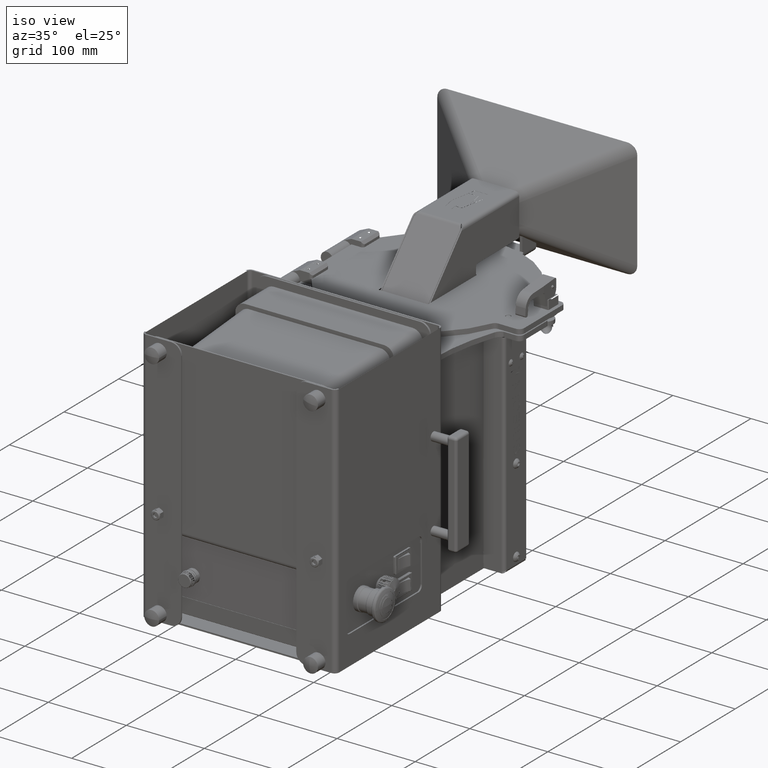
[diagram: clean part render]
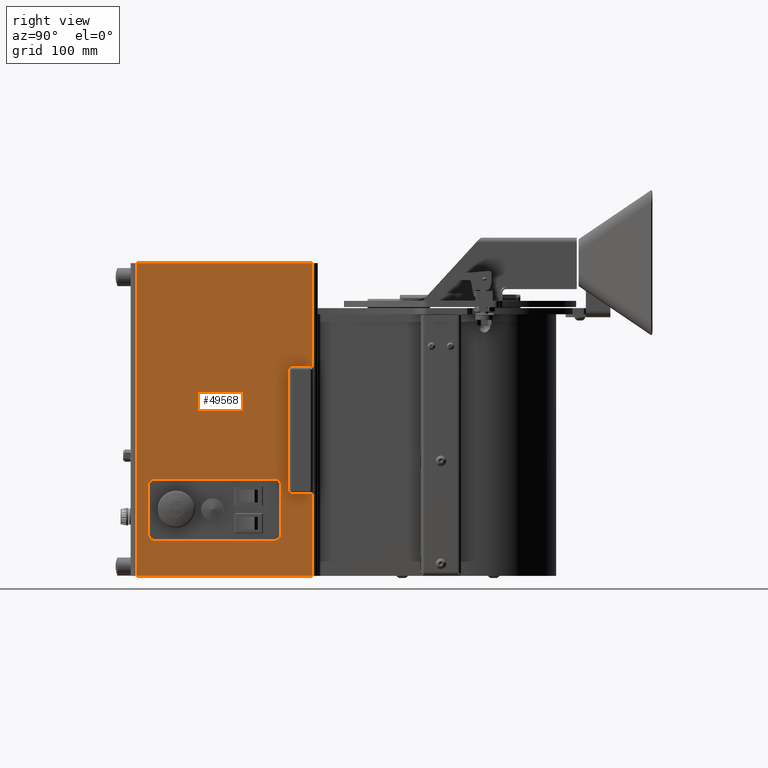
[diagram: tour spotlight — one face highlighted and labeled with its STEP entity id]
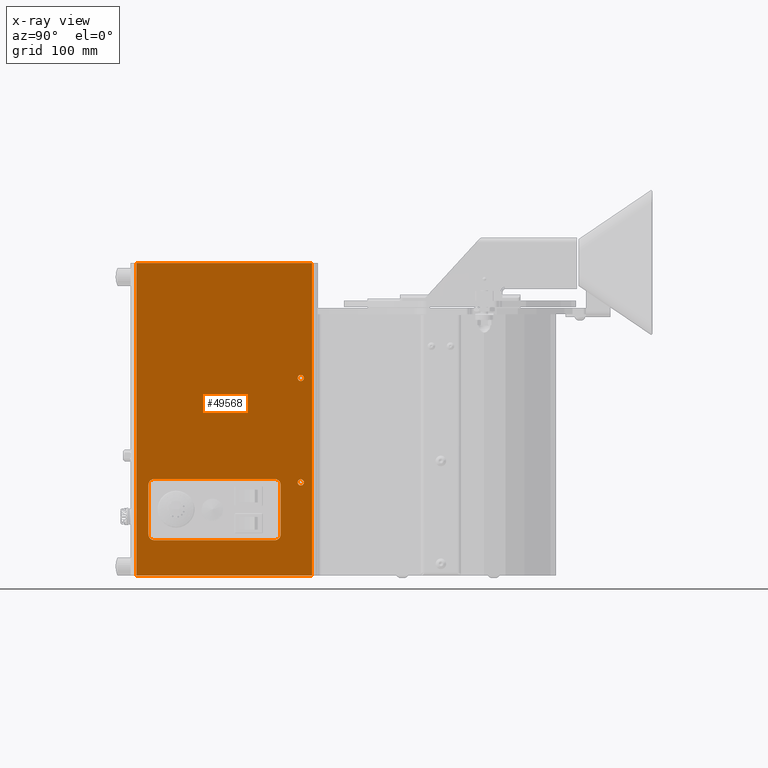
[diagram: x-ray of the same camera — body ghosted, this tour face saturated]
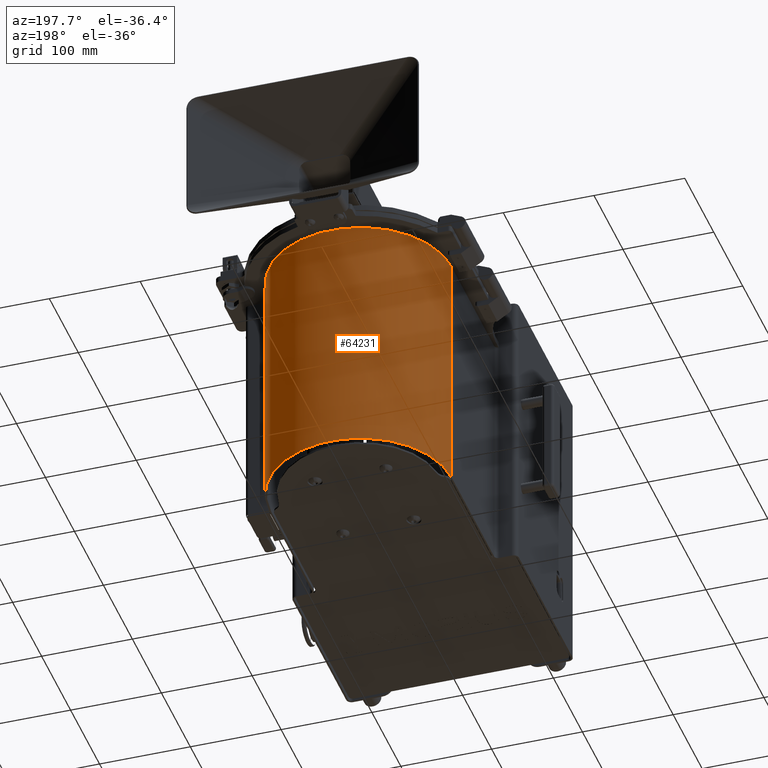
[diagram: tour spotlight — one face highlighted and labeled with its STEP entity id]
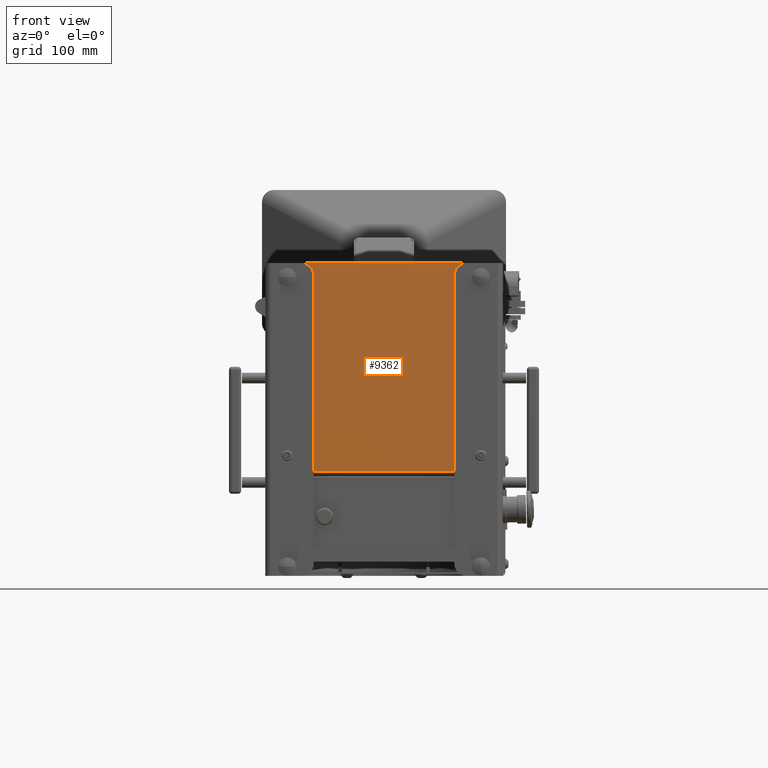
[diagram: tour spotlight — one face highlighted and labeled with its STEP entity id]
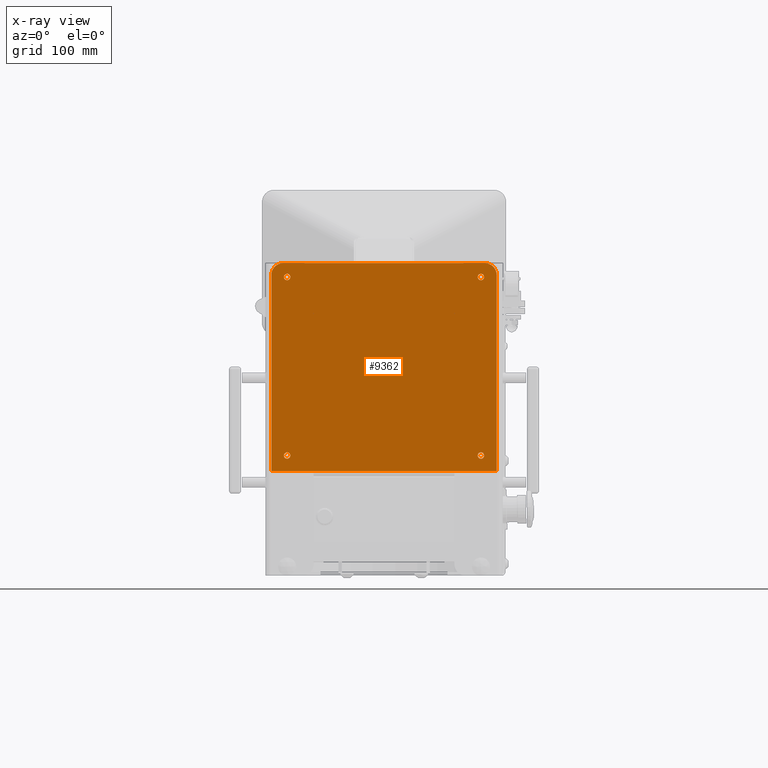
[diagram: x-ray of the same camera — body ghosted, this tour face saturated]
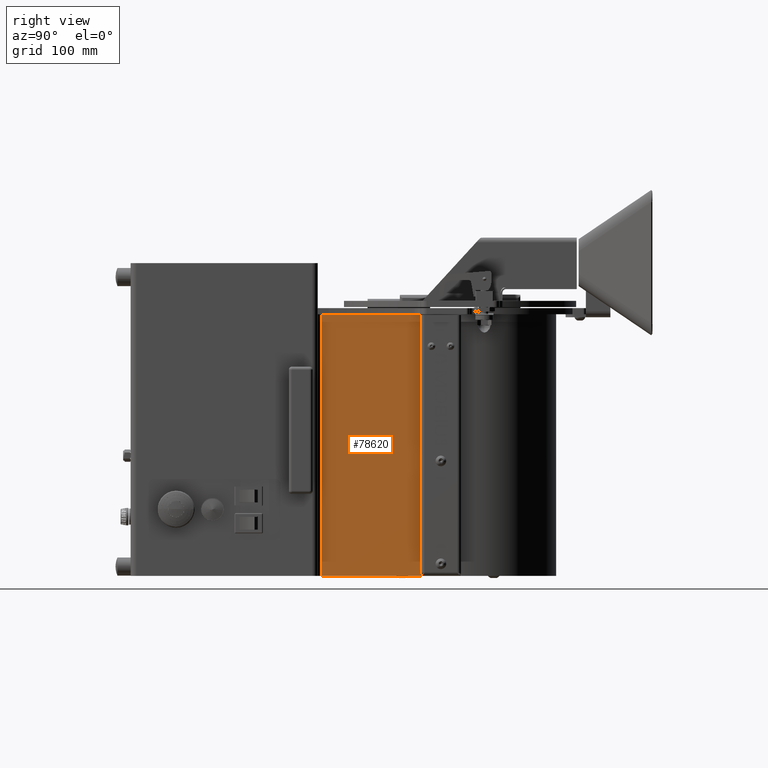
[diagram: tour spotlight — one face highlighted and labeled with its STEP entity id]
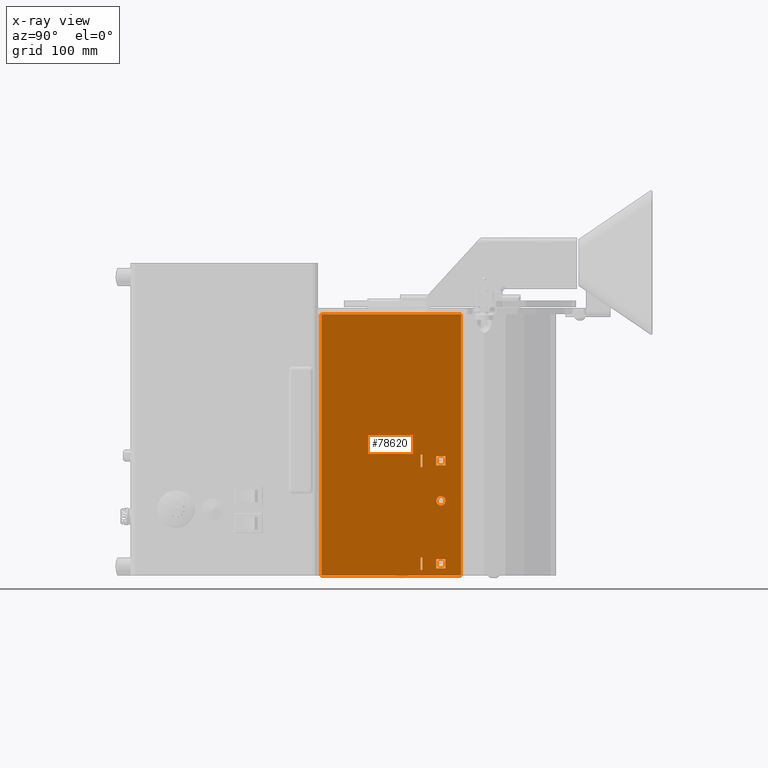
[diagram: x-ray of the same camera — body ghosted, this tour face saturated]
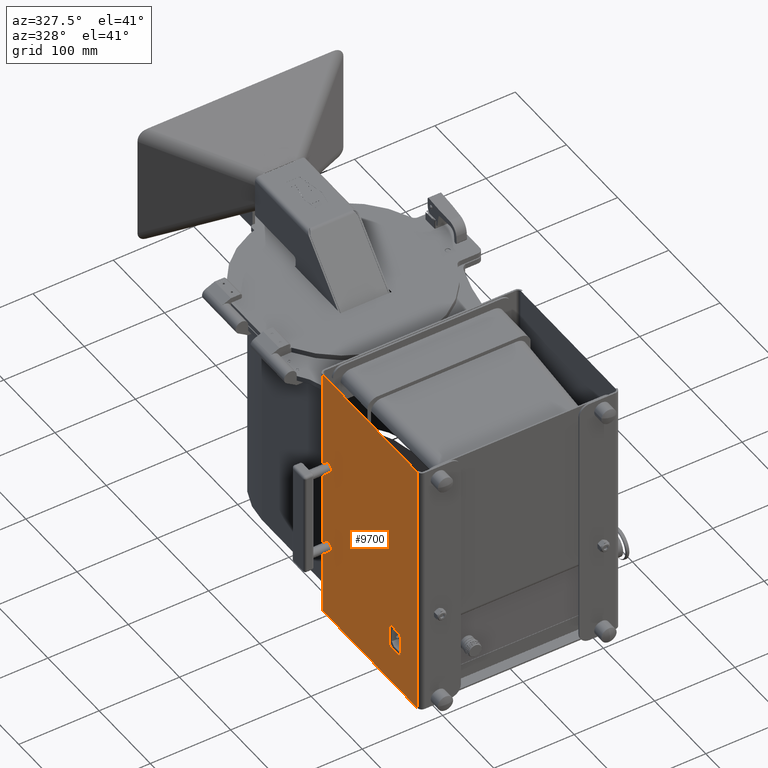
[diagram: tour spotlight — one face highlighted and labeled with its STEP entity id]
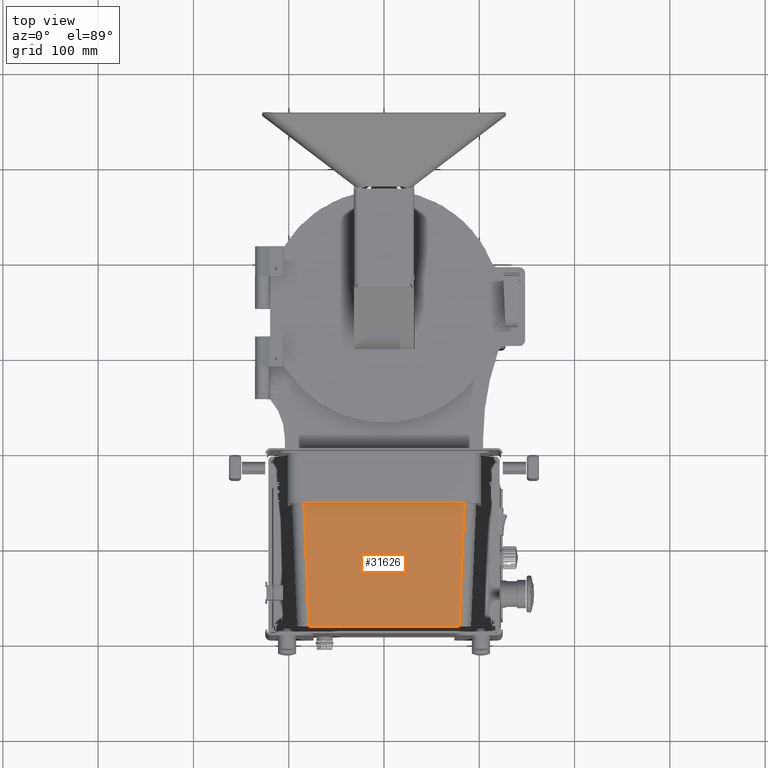
[diagram: tour spotlight — one face highlighted and labeled with its STEP entity id]
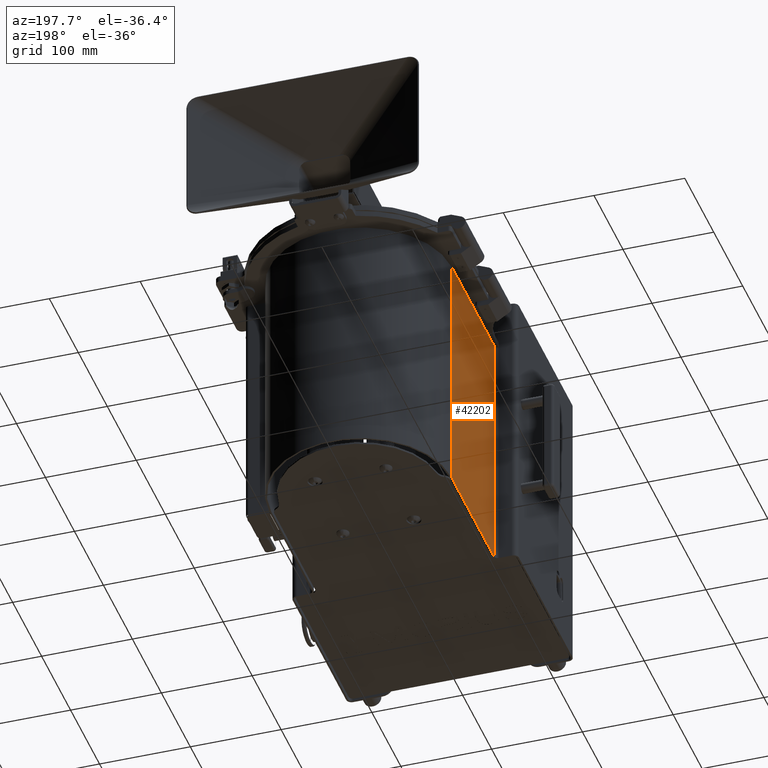
[diagram: tour spotlight — one face highlighted and labeled with its STEP entity id]
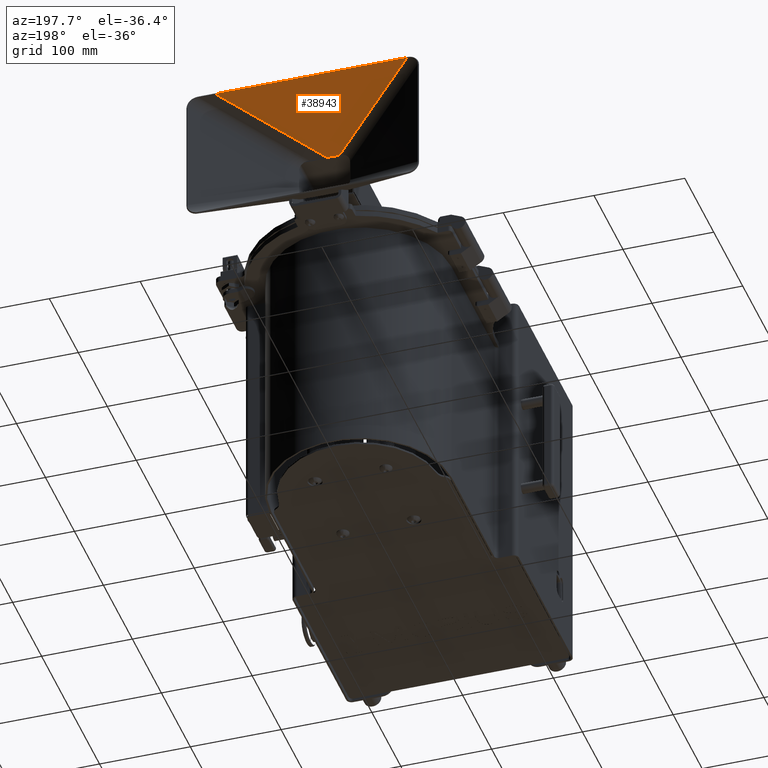
[diagram: tour spotlight — one face highlighted and labeled with its STEP entity id]
A machine part: a face-by-face anatomy tour. The part has 1051 B-rep faces; the first image is the clean iso view, then the 8 largest visible faces are spotlighted one at a time (largest first), each with its STEP entity span.

Face 1 — right view, entity #49568. An x-ray twin of the same camera follows (body ghosted, this face saturated) — the face is partly hidden behind the body. In plain terms, the highlighted planar face has unit normal (1, 0, -0).
Definition (entity closure, byte-faithful):
#150 = CARTESIAN_POINT ( 'NONE',  ( 4.905532310000002560, -0.6238000000000026857, 8.303849999999997067 ) ) ;
#809 = AXIS2_PLACEMENT_3D ( 'NONE', #27425, #3871, #40879 ) ;
#1054 = VERTEX_POINT ( 'NONE', #30403 ) ;
#2174 = VERTEX_POINT ( 'NONE', #17473 ) ;
#2666 = VERTEX_POINT ( 'NONE', #61873 ) ;
#3228 = AXIS2_PLACEMENT_3D ( 'NONE', #18793, #14002, #43109 ) ;
#3333 = ORIENTED_EDGE ( 'NONE', *, *, #51122, .F. ) ;
#3771 = ORIENTED_EDGE ( 'NONE', *, *, #18681, .F. ) ;
#3871 = DIRECTION ( 'NONE',  ( -1.000000000000000000, -3.569596625765066867E-16, 4.227034711989020149E-17 ) ) ;
#3903 = EDGE_CURVE ( 'NONE', #15075, #1054, #7704, .T. ) ;
#4424 = VECTOR ( 'NONE', #10509, 39.37007874015748143 ) ;
#4536 = ORIENTED_EDGE ( 'NONE', *, *, #25421, .F. ) ;
#5020 = ORIENTED_EDGE ( 'NONE', *, *, #66514, .T. ) ;
#5662 = CARTESIAN_POINT ( 'NONE',  ( 4.905532310000004337, -7.420000000000004370, 12.92559999999999754 ) ) ;
#5928 = DIRECTION ( 'NONE',  ( 0.000000000000000000, 1.000000000000000000, 0.000000000000000000 ) ) ;
#5986 = CARTESIAN_POINT ( 'NONE',  ( 4.905532310000004337, -6.920000000000005258, 4.000000000000000000 ) ) ;
#6597 = DIRECTION ( 'NONE',  ( 1.000000000000000000, -0.000000000000000000, -1.319467736927798692E-16 ) ) ;
#7191 = AXIS2_PLACEMENT_3D ( 'NONE', #41562, #59980, #18444 ) ;
#7704 = CIRCLE ( 'NONE', #43307, 0.1285000000000000031 ) ;
#8048 = ORIENTED_EDGE ( 'NONE', *, *, #64798, .T. ) ;
#8503 = ORIENTED_EDGE ( 'NONE', *, *, #49217, .T. ) ;
#8605 = AXIS2_PLACEMENT_3D ( 'NONE', #29451, #65020, #77029 ) ;
#9345 = FACE_BOUND ( 'NONE', #70855, .T. ) ;
#10509 = DIRECTION ( 'NONE',  ( 4.227034711989020149E-17, -2.736911063134408342E-48, 1.000000000000000000 ) ) ;
#11662 = ORIENTED_EDGE ( 'NONE', *, *, #47242, .F. ) ;
#14002 = DIRECTION ( 'NONE',  ( 1.000000000000000000, -0.000000000000000000, -1.319467736927798692E-16 ) ) ;
#15075 = VERTEX_POINT ( 'NONE', #76200 ) ;
#15399 = LINE ( 'NONE', #64909, #53311 ) ;
#15439 = CARTESIAN_POINT ( 'NONE',  ( 4.905532310000002560, -2.676392159618451346E-15, 12.92559999999999754 ) ) ;
#16243 = CARTESIAN_POINT ( 'NONE',  ( 4.905532310000001672, -0.6238000000000017975, 3.862849999999996786 ) ) ;
#16597 = LINE ( 'NONE', #59720, #24746 ) ;
#16803 = VERTEX_POINT ( 'NONE', #53420 ) ;
#16976 = VERTEX_POINT ( 'NONE', #52541 ) ;
#17473 = CARTESIAN_POINT ( 'NONE',  ( 4.905532310000004337, -6.920000000000005258, 1.721499999999999364 ) ) ;
#18441 = CIRCLE ( 'NONE', #3228, 0.1285000000000005582 ) ;
#18444 = DIRECTION ( 'NONE',  ( -3.569596625765066867E-16, 1.000000000000000000, 0.000000000000000000 ) ) ;
#18681 = EDGE_CURVE ( 'NONE', #77481, #48195, #51803, .T. ) ;
#18793 = CARTESIAN_POINT ( 'NONE',  ( 4.905532310000002560, -0.6238000000000026857, 8.175349999999998118 ) ) ;
#19070 = EDGE_CURVE ( 'NONE', #64573, #33630, #71104, .T. ) ;
#20806 = CIRCLE ( 'NONE', #51357, 0.2500000000000000555 ) ;
#21173 = VERTEX_POINT ( 'NONE', #27114 ) ;
#22072 = FACE_OUTER_BOUND ( 'NONE', #57006, .T. ) ;
#23126 = CARTESIAN_POINT ( 'NONE',  ( 4.905532310000001672, -1.454300000000005921, 1.471499999999999808 ) ) ;
#23200 = CARTESIAN_POINT ( 'NONE',  ( 4.905532310000001672, -0.1550000000000017752, 12.92559999999999754 ) ) ;
#23444 = VERTEX_POINT ( 'NONE', #28516 ) ;
#24599 = EDGE_CURVE ( 'NONE', #21173, #2666, #75683, .T. ) ;
#24746 = VECTOR ( 'NONE', #29777, 39.37007874015748143 ) ;
#25421 = EDGE_CURVE ( 'NONE', #38233, #33630, #16597, .T. ) ;
#26727 = ORIENTED_EDGE ( 'NONE', *, *, #24599, .T. ) ;
#26962 = VERTEX_POINT ( 'NONE', #69422 ) ;
#27114 = CARTESIAN_POINT ( 'NONE',  ( 4.905532310000004337, -6.920000000000005258, 3.750000000000000000 ) ) ;
#27320 = PLANE ( 'NONE',  #7191 ) ;
#27425 = CARTESIAN_POINT ( 'NONE',  ( 4.905532310000003449, -6.670000000000005258, 1.721499999999999364 ) ) ;
#28516 = CARTESIAN_POINT ( 'NONE',  ( 4.905532310000002560, -1.454300000000006365, 3.750000000000000000 ) ) ;
#29153 = DIRECTION ( 'NONE',  ( -1.000000000000000000, -3.569596625765066867E-16, 4.227034711989020149E-17 ) ) ;
#29451 = CARTESIAN_POINT ( 'NONE',  ( 4.905532310000001672, -0.6238000000000017975, 3.862849999999996786 ) ) ;
#29749 = DIRECTION ( 'NONE',  ( 0.000000000000000000, 0.000000000000000000, -1.000000000000000000 ) ) ;
#29777 = DIRECTION ( 'NONE',  ( 3.569596625765066867E-16, -1.000000000000000000, 8.068111026838544005E-17 ) ) ;
#30403 = CARTESIAN_POINT ( 'NONE',  ( 4.905532310000001672, -0.6238000000000017975, 3.991349999999996623 ) ) ;
#30589 = VECTOR ( 'NONE', #78696, 39.37007874015748143 ) ;
#31302 = CARTESIAN_POINT ( 'NONE',  ( 4.905532310000004337, -7.420000000000004370, 5.199804926808732141E-16 ) ) ;
#32507 = LINE ( 'NONE', #59210, #4424 ) ;
#32900 = ORIENTED_EDGE ( 'NONE', *, *, #35005, .F. ) ;
#33275 = FACE_BOUND ( 'NONE', #78232, .T. ) ;
#33630 = VERTEX_POINT ( 'NONE', #31302 ) ;
#35005 = EDGE_CURVE ( 'NONE', #21173, #2174, #46822, .T. ) ;
#35655 = DIRECTION ( 'NONE',  ( -0.000000000000000000, -0.000000000000000000, -1.000000000000000000 ) ) ;
#37026 = ORIENTED_EDGE ( 'NONE', *, *, #75093, .F. ) ;
#38233 = VERTEX_POINT ( 'NONE', #58727 ) ;
#38975 = CIRCLE ( 'NONE', #809, 0.2499999999999998057 ) ;
#39156 = CIRCLE ( 'NONE', #8605, 0.1285000000000000031 ) ;
#39707 = CIRCLE ( 'NONE', #46003, 0.2500000000000000555 ) ;
#39921 = CARTESIAN_POINT ( 'NONE',  ( 4.905532310000004337, -7.420000000000004370, 12.92559999999999754 ) ) ;
#40437 = VECTOR ( 'NONE', #45496, 39.37007874015748143 ) ;
#40574 = DIRECTION ( 'NONE',  ( 1.000000000000000000, -0.000000000000000000, -1.319467736927798692E-16 ) ) ;
#40879 = DIRECTION ( 'NONE',  ( 0.000000000000000000, 1.000000000000000000, 0.000000000000000000 ) ) ;
#41562 = CARTESIAN_POINT ( 'NONE',  ( 4.905532310000001672, 2.023761850699400564E-15, -2.073585535515368649E-16 ) ) ;
#43109 = DIRECTION ( 'NONE',  ( 0.000000000000000000, 0.000000000000000000, -1.000000000000000000 ) ) ;
#43307 = AXIS2_PLACEMENT_3D ( 'NONE', #16243, #40574, #64985 ) ;
#45152 = DIRECTION ( 'NONE',  ( -1.000000000000000000, -3.569596625765066867E-16, 4.227034711989020149E-17 ) ) ;
#45496 = DIRECTION ( 'NONE',  ( 0.000000000000000000, 0.000000000000000000, -1.000000000000000000 ) ) ;
#45557 = DIRECTION ( 'NONE',  ( 0.000000000000000000, 1.000000000000000000, 0.000000000000000000 ) ) ;
#46003 = AXIS2_PLACEMENT_3D ( 'NONE', #78698, #29153, #77913 ) ;
#46759 = FACE_BOUND ( 'NONE', #48406, .T. ) ;
#46822 = LINE ( 'NONE', #59252, #69740 ) ;
#47242 = EDGE_CURVE ( 'NONE', #48195, #77481, #18441, .T. ) ;
#47822 = LINE ( 'NONE', #5986, #30589 ) ;
#47976 = ORIENTED_EDGE ( 'NONE', *, *, #63006, .T. ) ;
#48195 = VERTEX_POINT ( 'NONE', #69351 ) ;
#48406 = EDGE_LOOP ( 'NONE', ( #55261, #76827 ) ) ;
#48976 = DIRECTION ( 'NONE',  ( 3.998533389925188863E-16, -1.000000000000000000, -9.996333474812972158E-17 ) ) ;
#49217 = EDGE_CURVE ( 'NONE', #63575, #2174, #38975, .T. ) ;
#49568 = ADVANCED_FACE ( 'NONE', ( #9345, #22072, #33275, #46759 ), #27320, .T. ) ;
#51122 = EDGE_CURVE ( 'NONE', #26962, #23444, #15399, .T. ) ;
#51357 = AXIS2_PLACEMENT_3D ( 'NONE', #72629, #66641, #5928 ) ;
#51599 = EDGE_CURVE ( 'NONE', #16803, #2666, #47822, .T. ) ;
#51803 = CIRCLE ( 'NONE', #63327, 0.1285000000000005582 ) ;
#52054 = DIRECTION ( 'NONE',  ( 1.365923996832131609E-16, -1.365923996832131609E-16, 1.000000000000000000 ) ) ;
#52541 = CARTESIAN_POINT ( 'NONE',  ( 4.905532310000001672, -1.704300000000006143, 1.471499999999999808 ) ) ;
#53311 = VECTOR ( 'NONE', #52054, 39.37007874015748143 ) ;
#53420 = CARTESIAN_POINT ( 'NONE',  ( 4.905532310000002560, -1.704300000000006143, 4.000000000000000000 ) ) ;
#55261 = ORIENTED_EDGE ( 'NONE', *, *, #3903, .F. ) ;
#57006 = EDGE_LOOP ( 'NONE', ( #66435, #4536, #68454, #37026 ) ) ;
#58727 = CARTESIAN_POINT ( 'NONE',  ( 4.905532310000001672, -0.1550000000000017752, 0.000000000000000000 ) ) ;
#59210 = CARTESIAN_POINT ( 'NONE',  ( 4.905532310000001672, -0.1550000000000017752, -2.073585535515368649E-16 ) ) ;
#59252 = CARTESIAN_POINT ( 'NONE',  ( 4.905532310000004337, -6.920000000000005258, -2.073585535515368649E-16 ) ) ;
#59560 = VECTOR ( 'NONE', #63342, 39.37007874015748143 ) ;
#59720 = CARTESIAN_POINT ( 'NONE',  ( 4.905532310000004337, -7.653100000000003789, 5.387872594844338663E-16 ) ) ;
#59980 = DIRECTION ( 'NONE',  ( 1.000000000000000000, 3.569596625765066867E-16, -4.227034711989020149E-17 ) ) ;
#61268 = CARTESIAN_POINT ( 'NONE',  ( 4.905532310000002560, -0.6238000000000026857, 8.175349999999998118 ) ) ;
#61582 = AXIS2_PLACEMENT_3D ( 'NONE', #63983, #45152, #45557 ) ;
#61873 = CARTESIAN_POINT ( 'NONE',  ( 4.905532310000004337, -6.670000000000005258, 4.000000000000000000 ) ) ;
#63006 = EDGE_CURVE ( 'NONE', #16976, #63575, #77881, .T. ) ;
#63327 = AXIS2_PLACEMENT_3D ( 'NONE', #61268, #6597, #29749 ) ;
#63342 = DIRECTION ( 'NONE',  ( -3.569596625765066867E-16, 1.000000000000000000, -2.736911063134408342E-48 ) ) ;
#63575 = VERTEX_POINT ( 'NONE', #67663 ) ;
#63983 = CARTESIAN_POINT ( 'NONE',  ( 4.905532310000003449, -6.670000000000005258, 3.750000000000000000 ) ) ;
#64573 = VERTEX_POINT ( 'NONE', #5662 ) ;
#64798 = EDGE_CURVE ( 'NONE', #26962, #16976, #39707, .T. ) ;
#64909 = CARTESIAN_POINT ( 'NONE',  ( 4.905532310000001672, -1.454300000000005921, -2.073585535515368649E-16 ) ) ;
#64985 = DIRECTION ( 'NONE',  ( 0.000000000000000000, 0.000000000000000000, -1.000000000000000000 ) ) ;
#65020 = DIRECTION ( 'NONE',  ( 1.000000000000000000, -0.000000000000000000, -1.319467736927798692E-16 ) ) ;
#65990 = VERTEX_POINT ( 'NONE', #23200 ) ;
#66435 = ORIENTED_EDGE ( 'NONE', *, *, #19070, .T. ) ;
#66514 = EDGE_CURVE ( 'NONE', #16803, #23444, #20806, .T. ) ;
#66641 = DIRECTION ( 'NONE',  ( -1.000000000000000000, -3.569596625765066867E-16, 4.227034711989020149E-17 ) ) ;
#67663 = CARTESIAN_POINT ( 'NONE',  ( 4.905532310000004337, -6.670000000000005258, 1.471499999999999364 ) ) ;
#68454 = ORIENTED_EDGE ( 'NONE', *, *, #73199, .T. ) ;
#69351 = CARTESIAN_POINT ( 'NONE',  ( 4.905532310000002560, -0.6238000000000026857, 8.046849999999997394 ) ) ;
#69422 = CARTESIAN_POINT ( 'NONE',  ( 4.905532310000001672, -1.454300000000006143, 1.721499999999999586 ) ) ;
#69740 = VECTOR ( 'NONE', #35655, 39.37007874015748143 ) ;
#70855 = EDGE_LOOP ( 'NONE', ( #3333, #8048, #47976, #8503, #32900, #26727, #74463, #5020 ) ) ;
#71104 = LINE ( 'NONE', #39921, #40437 ) ;
#71998 = EDGE_CURVE ( 'NONE', #1054, #15075, #39156, .T. ) ;
#72629 = CARTESIAN_POINT ( 'NONE',  ( 4.905532310000002560, -1.704300000000005921, 3.750000000000000000 ) ) ;
#73199 = EDGE_CURVE ( 'NONE', #38233, #65990, #32507, .T. ) ;
#74463 = ORIENTED_EDGE ( 'NONE', *, *, #51599, .F. ) ;
#75093 = EDGE_CURVE ( 'NONE', #64573, #65990, #76573, .T. ) ;
#75683 = CIRCLE ( 'NONE', #61582, 0.2499999999999998057 ) ;
#76200 = CARTESIAN_POINT ( 'NONE',  ( 4.905532310000001672, -0.6238000000000017975, 3.734349999999996950 ) ) ;
#76573 = LINE ( 'NONE', #15439, #59560 ) ;
#76827 = ORIENTED_EDGE ( 'NONE', *, *, #71998, .F. ) ;
#77029 = DIRECTION ( 'NONE',  ( 0.000000000000000000, 0.000000000000000000, -1.000000000000000000 ) ) ;
#77481 = VERTEX_POINT ( 'NONE', #150 ) ;
#77879 = VECTOR ( 'NONE', #48976, 39.37007874015748143 ) ;
#77881 = LINE ( 'NONE', #23126, #77879 ) ;
#77913 = DIRECTION ( 'NONE',  ( 0.000000000000000000, 1.000000000000000000, 0.000000000000000000 ) ) ;
#78232 = EDGE_LOOP ( 'NONE', ( #11662, #3771 ) ) ;
#78696 = DIRECTION ( 'NONE',  ( 2.998900042443892633E-16, -1.000000000000000000, -0.000000000000000000 ) ) ;
#78698 = CARTESIAN_POINT ( 'NONE',  ( 4.905532310000002560, -1.704300000000006143, 1.721499999999999586 ) ) ;

Face 2 — auxiliary view, entity #64231. In plain terms, the highlighted cylindrical surface (partial cylindrical patch) has radius 100.409 mm, axis along (-0, -0, -1).
Definition (entity closure, byte-faithful):
#837 = DIRECTION ( 'NONE',  ( -0.000000000000000000, -0.000000000000000000, -1.000000000000000000 ) ) ;
#3716 = ORIENTED_EDGE ( 'NONE', *, *, #6545, .T. ) ;
#6545 = EDGE_CURVE ( 'NONE', #69344, #50783, #57116, .T. ) ;
#7732 = AXIS2_PLACEMENT_3D ( 'NONE', #40496, #58886, #64913 ) ;
#7908 = DIRECTION ( 'NONE',  ( 1.000000000000000000, 0.000000000000000000, 0.000000000000000000 ) ) ;
#12721 = ORIENTED_EDGE ( 'NONE', *, *, #77820, .F. ) ;
#14050 = DIRECTION ( 'NONE',  ( 1.000000000000000000, 0.000000000000000000, 0.000000000000000000 ) ) ;
#16167 = CYLINDRICAL_SURFACE ( 'NONE', #7732, 3.953099999999998726 ) ;
#19543 = CARTESIAN_POINT ( 'NONE',  ( 3.953099999999997838, 6.000200000000001310, 0.000000000000000000 ) ) ;
#19946 = CARTESIAN_POINT ( 'NONE',  ( -3.953099999999998726, 6.000200000000000422, 10.81259999999999977 ) ) ;
#20413 = CARTESIAN_POINT ( 'NONE',  ( 3.953099999999997838, 6.000200000000001310, 10.81259999999999977 ) ) ;
#26059 = CARTESIAN_POINT ( 'NONE',  ( 0.000000000000000000, 6.000200000000000422, 0.000000000000000000 ) ) ;
#27225 = CIRCLE ( 'NONE', #71820, 3.953099999999998726 ) ;
#35276 = CIRCLE ( 'NONE', #55677, 3.953099999999998726 ) ;
#37167 = DIRECTION ( 'NONE',  ( -0.000000000000000000, -0.000000000000000000, -1.000000000000000000 ) ) ;
#40496 = CARTESIAN_POINT ( 'NONE',  ( 0.000000000000000000, 6.000200000000000422, 10.81259999999999977 ) ) ;
#41036 = VERTEX_POINT ( 'NONE', #49044 ) ;
#41169 = CARTESIAN_POINT ( 'NONE',  ( 3.953099999999997838, 6.000200000000001310, 10.81259999999999977 ) ) ;
#45801 = VERTEX_POINT ( 'NONE', #58119 ) ;
#49044 = CARTESIAN_POINT ( 'NONE',  ( -3.953099999999998726, 6.000200000000000422, 10.81259999999999977 ) ) ;
#49639 = EDGE_CURVE ( 'NONE', #45801, #50783, #35276, .T. ) ;
#49839 = LINE ( 'NONE', #19946, #62397 ) ;
#50783 = VERTEX_POINT ( 'NONE', #19543 ) ;
#51290 = VECTOR ( 'NONE', #63527, 39.37007874015748143 ) ;
#53964 = ORIENTED_EDGE ( 'NONE', *, *, #66583, .T. ) ;
#55677 = AXIS2_PLACEMENT_3D ( 'NONE', #26059, #37167, #14050 ) ;
#57116 = LINE ( 'NONE', #20413, #51290 ) ;
#57308 = FACE_OUTER_BOUND ( 'NONE', #65724, .T. ) ;
#58119 = CARTESIAN_POINT ( 'NONE',  ( -3.953099999999998726, 6.000200000000000422, 0.000000000000000000 ) ) ;
#58886 = DIRECTION ( 'NONE',  ( -0.000000000000000000, -0.000000000000000000, -1.000000000000000000 ) ) ;
#62397 = VECTOR ( 'NONE', #837, 39.37007874015748143 ) ;
#62576 = CARTESIAN_POINT ( 'NONE',  ( 0.000000000000000000, 6.000200000000000422, 10.81259999999999977 ) ) ;
#63527 = DIRECTION ( 'NONE',  ( -0.000000000000000000, -0.000000000000000000, -1.000000000000000000 ) ) ;
#64231 = ADVANCED_FACE ( 'NONE', ( #57308 ), #16167, .T. ) ;
#64913 = DIRECTION ( 'NONE',  ( -1.000000000000000000, 0.000000000000000000, 0.000000000000000000 ) ) ;
#65724 = EDGE_LOOP ( 'NONE', ( #72751, #12721, #53964, #3716 ) ) ;
#66583 = EDGE_CURVE ( 'NONE', #41036, #69344, #27225, .T. ) ;
#69344 = VERTEX_POINT ( 'NONE', #41169 ) ;
#71820 = AXIS2_PLACEMENT_3D ( 'NONE', #62576, #74626, #7908 ) ;
#72751 = ORIENTED_EDGE ( 'NONE', *, *, #49639, .F. ) ;
#74626 = DIRECTION ( 'NONE',  ( -0.000000000000000000, -0.000000000000000000, -1.000000000000000000 ) ) ;
#77820 = EDGE_CURVE ( 'NONE', #41036, #45801, #49839, .T. ) ;

Face 3 — front view, entity #9362. An x-ray twin of the same camera follows (body ghosted, this face saturated) — the face is partly hidden behind the body. In plain terms, the highlighted planar face has unit normal (0, -1, -0).
Definition (entity closure, byte-faithful):
#911 = AXIS2_PLACEMENT_3D ( 'NONE', #36268, #73471, #6379 ) ;
#1902 = CARTESIAN_POINT ( 'NONE',  ( -4.005000000000010552, -7.574900000000034161, 4.972000000000001307 ) ) ;
#2170 = VERTEX_POINT ( 'NONE', #77851 ) ;
#2430 = DIRECTION ( 'NONE',  ( 0.000000000000000000, 0.000000000000000000, -1.000000000000000000 ) ) ;
#2957 = VERTEX_POINT ( 'NONE', #19864 ) ;
#3061 = DIRECTION ( 'NONE',  ( 0.000000000000000000, 0.000000000000000000, -1.000000000000000000 ) ) ;
#3348 = ORIENTED_EDGE ( 'NONE', *, *, #46567, .T. ) ;
#3818 = CARTESIAN_POINT ( 'NONE',  ( -9.935092563010785283E-15, -7.574899999999998634, 4.330100000000000726 ) ) ;
#6379 = DIRECTION ( 'NONE',  ( -2.391543916884025324E-17, -3.371374513075487609E-15, 1.000000000000000000 ) ) ;
#6581 = AXIS2_PLACEMENT_3D ( 'NONE', #41686, #30963, #43269 ) ;
#6762 = EDGE_CURVE ( 'NONE', #2170, #66721, #50621, .T. ) ;
#7523 = EDGE_CURVE ( 'NONE', #39332, #35150, #12089, .T. ) ;
#7832 = ORIENTED_EDGE ( 'NONE', *, *, #33381, .T. ) ;
#7854 = ORIENTED_EDGE ( 'NONE', *, *, #6762, .F. ) ;
#8344 = CARTESIAN_POINT ( 'NONE',  ( 4.657399999999994655, -7.574899999999997746, 4.175100000000001366 ) ) ;
#8348 = VECTOR ( 'NONE', #35873, 39.37007874015748143 ) ;
#8523 = CARTESIAN_POINT ( 'NONE',  ( -4.657400000000014195, -7.574900000000001299, 4.330100000000000726 ) ) ;
#9362 = ADVANCED_FACE ( 'NONE', ( #72683, #43028, #18342, #48616, #17944 ), #66682, .T. ) ;
#10438 = CARTESIAN_POINT ( 'NONE',  ( 4.004999999999991012, -7.574900000000031497, 4.839000000000003077 ) ) ;
#11719 = DIRECTION ( 'NONE',  ( 0.000000000000000000, 0.000000000000000000, -1.000000000000000000 ) ) ;
#12089 = CIRCLE ( 'NONE', #28675, 0.1329999999999999238 ) ;
#12523 = EDGE_CURVE ( 'NONE', #52493, #55204, #19102, .T. ) ;
#13104 = CARTESIAN_POINT ( 'NONE',  ( 4.657399999999994655, -7.574900000000027056, 12.92560000000000109 ) ) ;
#13297 = CIRCLE ( 'NONE', #60498, 0.1329999999999999238 ) ;
#14095 = VERTEX_POINT ( 'NONE', #8523 ) ;
#15285 = CARTESIAN_POINT ( 'NONE',  ( -4.005000000000010552, -7.574900000000058142, 12.21450000000000102 ) ) ;
#16021 = AXIS2_PLACEMENT_3D ( 'NONE', #28674, #58203, #27913 ) ;
#16870 = EDGE_CURVE ( 'NONE', #14095, #47350, #54208, .T. ) ;
#17687 = DIRECTION ( 'NONE',  ( 0.000000000000000000, -4.370956789862824305E-15, 1.000000000000000000 ) ) ;
#17939 = CARTESIAN_POINT ( 'NONE',  ( -4.657400000000014195, -7.574900000000029721, 12.92560000000000109 ) ) ;
#17944 = FACE_OUTER_BOUND ( 'NONE', #63966, .T. ) ;
#18342 = FACE_BOUND ( 'NONE', #38869, .T. ) ;
#18828 = VECTOR ( 'NONE', #37398, 39.37007874015748143 ) ;
#19079 = EDGE_LOOP ( 'NONE', ( #3348, #71346 ) ) ;
#19102 = LINE ( 'NONE', #13104, #18828 ) ;
#19864 = CARTESIAN_POINT ( 'NONE',  ( -4.005000000000010552, -7.574900000000034161, 4.839000000000001300 ) ) ;
#20031 = DIRECTION ( 'NONE',  ( 0.000000000000000000, 0.000000000000000000, -1.000000000000000000 ) ) ;
#20231 = DIRECTION ( 'NONE',  ( 0.000000000000000000, 0.000000000000000000, -1.000000000000000000 ) ) ;
#20690 = AXIS2_PLACEMENT_3D ( 'NONE', #32347, #44650, #37898 ) ;
#21183 = VERTEX_POINT ( 'NONE', #56612 ) ;
#22412 = CARTESIAN_POINT ( 'NONE',  ( -4.005000000000010552, -7.574900000000058142, 12.34750000000000192 ) ) ;
#22807 = EDGE_LOOP ( 'NONE', ( #7832, #25822 ) ) ;
#23929 = ORIENTED_EDGE ( 'NONE', *, *, #38423, .T. ) ;
#24420 = CIRCLE ( 'NONE', #6581, 0.4999999999999996114 ) ;
#24497 = CARTESIAN_POINT ( 'NONE',  ( -4.157400000000014195, -7.574900000000028832, 12.42560000000000286 ) ) ;
#25822 = ORIENTED_EDGE ( 'NONE', *, *, #7523, .T. ) ;
#27366 = DIRECTION ( 'NONE',  ( 1.000000000000000000, 2.921924854848433464E-16, 3.857945768595415238E-17 ) ) ;
#27913 = DIRECTION ( 'NONE',  ( 0.000000000000000000, 0.000000000000000000, -1.000000000000000000 ) ) ;
#28674 = CARTESIAN_POINT ( 'NONE',  ( 4.004999999999991012, -7.574900000000055478, 12.34750000000000192 ) ) ;
#28675 = AXIS2_PLACEMENT_3D ( 'NONE', #22412, #40352, #59141 ) ;
#30010 = CARTESIAN_POINT ( 'NONE',  ( 4.004999999999991012, -7.574900000000055478, 12.21450000000000102 ) ) ;
#30053 = CIRCLE ( 'NONE', #16021, 0.1329999999999999238 ) ;
#30841 = CARTESIAN_POINT ( 'NONE',  ( 4.004999999999991012, -7.574900000000055478, 12.34750000000000192 ) ) ;
#30963 = DIRECTION ( 'NONE',  ( 2.921924854848434943E-16, -1.000000000000000000, -3.371374513075486031E-15 ) ) ;
#32347 = CARTESIAN_POINT ( 'NONE',  ( 4.004999999999991012, -7.574900000000031497, 4.972000000000002196 ) ) ;
#32718 = CARTESIAN_POINT ( 'NONE',  ( -4.005000000000010552, -7.574900000000034161, 4.972000000000001307 ) ) ;
#33228 = ORIENTED_EDGE ( 'NONE', *, *, #45887, .T. ) ;
#33381 = EDGE_CURVE ( 'NONE', #35150, #39332, #59374, .T. ) ;
#34252 = CARTESIAN_POINT ( 'NONE',  ( -4.157400000000015083, -7.574900000000029721, 12.92560000000000109 ) ) ;
#34926 = CARTESIAN_POINT ( 'NONE',  ( 4.004999999999991012, -7.574900000000031497, 5.105000000000002203 ) ) ;
#35150 = VERTEX_POINT ( 'NONE', #15285 ) ;
#35242 = CARTESIAN_POINT ( 'NONE',  ( 4.004999999999991012, -7.574900000000031497, 4.972000000000002196 ) ) ;
#35450 = AXIS2_PLACEMENT_3D ( 'NONE', #30841, #74397, #20031 ) ;
#35873 = DIRECTION ( 'NONE',  ( -2.391543916884025324E-17, -3.371374513075487609E-15, 1.000000000000000000 ) ) ;
#36268 = CARTESIAN_POINT ( 'NONE',  ( -9.926701530964091249E-15, -7.574899999999998634, 4.112600000000001366 ) ) ;
#37398 = DIRECTION ( 'NONE',  ( 1.000000000000000000, 2.921924854848433957E-16, 2.391543916884019777E-17 ) ) ;
#37678 = AXIS2_PLACEMENT_3D ( 'NONE', #70888, #64485, #3061 ) ;
#37898 = DIRECTION ( 'NONE',  ( 0.000000000000000000, 0.000000000000000000, -1.000000000000000000 ) ) ;
#38423 = EDGE_CURVE ( 'NONE', #21183, #2957, #13297, .T. ) ;
#38869 = EDGE_LOOP ( 'NONE', ( #61817, #23929 ) ) ;
#39332 = VERTEX_POINT ( 'NONE', #73850 ) ;
#40352 = DIRECTION ( 'NONE',  ( -2.921924854848434943E-16, 1.000000000000000000, 3.371374513075485242E-15 ) ) ;
#41686 = CARTESIAN_POINT ( 'NONE',  ( 4.157399999999994655, -7.574900000000025280, 12.42560000000000286 ) ) ;
#42680 = AXIS2_PLACEMENT_3D ( 'NONE', #1902, #74998, #20231 ) ;
#43028 = FACE_BOUND ( 'NONE', #51059, .T. ) ;
#43269 = DIRECTION ( 'NONE',  ( 0.000000000000000000, -4.370956789862824305E-15, 1.000000000000000000 ) ) ;
#44650 = DIRECTION ( 'NONE',  ( -2.921924854848434943E-16, 1.000000000000000000, 3.371374513075485242E-15 ) ) ;
#45887 = EDGE_CURVE ( 'NONE', #2170, #55204, #24420, .T. ) ;
#46181 = EDGE_CURVE ( 'NONE', #52907, #46410, #53745, .T. ) ;
#46410 = VERTEX_POINT ( 'NONE', #10438 ) ;
#46489 = CIRCLE ( 'NONE', #42680, 0.1329999999999999238 ) ;
#46567 = EDGE_CURVE ( 'NONE', #46410, #52907, #56351, .T. ) ;
#46582 = ORIENTED_EDGE ( 'NONE', *, *, #16870, .F. ) ;
#47350 = VERTEX_POINT ( 'NONE', #77491 ) ;
#48616 = FACE_BOUND ( 'NONE', #19079, .T. ) ;
#48675 = VERTEX_POINT ( 'NONE', #71960 ) ;
#48850 = ORIENTED_EDGE ( 'NONE', *, *, #65864, .T. ) ;
#50621 = LINE ( 'NONE', #8344, #64155 ) ;
#51059 = EDGE_LOOP ( 'NONE', ( #52850, #76425 ) ) ;
#51242 = LINE ( 'NONE', #3818, #75134 ) ;
#52493 = VERTEX_POINT ( 'NONE', #34252 ) ;
#52850 = ORIENTED_EDGE ( 'NONE', *, *, #73915, .T. ) ;
#52907 = VERTEX_POINT ( 'NONE', #34926 ) ;
#53202 = CARTESIAN_POINT ( 'NONE',  ( 4.657399999999994655, -7.574899999999997746, 4.330100000000000726 ) ) ;
#53294 = ORIENTED_EDGE ( 'NONE', *, *, #76182, .T. ) ;
#53745 = CIRCLE ( 'NONE', #57594, 0.1329999999999999238 ) ;
#54208 = LINE ( 'NONE', #17939, #8348 ) ;
#55204 = VERTEX_POINT ( 'NONE', #66107 ) ;
#56351 = CIRCLE ( 'NONE', #20690, 0.1329999999999999238 ) ;
#56612 = CARTESIAN_POINT ( 'NONE',  ( -4.005000000000010552, -7.574900000000034161, 5.105000000000001315 ) ) ;
#57594 = AXIS2_PLACEMENT_3D ( 'NONE', #35242, #73237, #11719 ) ;
#58203 = DIRECTION ( 'NONE',  ( -2.921924854848434943E-16, 1.000000000000000000, 3.371374513075485242E-15 ) ) ;
#59141 = DIRECTION ( 'NONE',  ( 0.000000000000000000, 0.000000000000000000, -1.000000000000000000 ) ) ;
#59374 = CIRCLE ( 'NONE', #37678, 0.1329999999999999238 ) ;
#59668 = VERTEX_POINT ( 'NONE', #30010 ) ;
#59706 = CIRCLE ( 'NONE', #35450, 0.1329999999999999238 ) ;
#60498 = AXIS2_PLACEMENT_3D ( 'NONE', #32718, #68703, #2430 ) ;
#61817 = ORIENTED_EDGE ( 'NONE', *, *, #68979, .T. ) ;
#62808 = CIRCLE ( 'NONE', #64132, 0.4999999999999996114 ) ;
#63966 = EDGE_LOOP ( 'NONE', ( #69714, #48850, #46582, #53294, #7854, #33228 ) ) ;
#64132 = AXIS2_PLACEMENT_3D ( 'NONE', #24497, #72421, #17687 ) ;
#64155 = VECTOR ( 'NONE', #68677, 39.37007874015748143 ) ;
#64485 = DIRECTION ( 'NONE',  ( -2.921924854848434943E-16, 1.000000000000000000, 3.371374513075485242E-15 ) ) ;
#65864 = EDGE_CURVE ( 'NONE', #52493, #47350, #62808, .T. ) ;
#66107 = CARTESIAN_POINT ( 'NONE',  ( 4.157399999999994655, -7.574900000000027056, 12.92560000000000109 ) ) ;
#66682 = PLANE ( 'NONE',  #911 ) ;
#66721 = VERTEX_POINT ( 'NONE', #53202 ) ;
#68677 = DIRECTION ( 'NONE',  ( 2.391543916884025324E-17, 3.371374513075487609E-15, -1.000000000000000000 ) ) ;
#68703 = DIRECTION ( 'NONE',  ( -2.921924854848434943E-16, 1.000000000000000000, 3.371374513075485242E-15 ) ) ;
#68979 = EDGE_CURVE ( 'NONE', #2957, #21183, #46489, .T. ) ;
#69714 = ORIENTED_EDGE ( 'NONE', *, *, #12523, .F. ) ;
#70888 = CARTESIAN_POINT ( 'NONE',  ( -4.005000000000010552, -7.574900000000058142, 12.34750000000000192 ) ) ;
#71346 = ORIENTED_EDGE ( 'NONE', *, *, #46181, .T. ) ;
#71796 = EDGE_CURVE ( 'NONE', #48675, #59668, #59706, .T. ) ;
#71960 = CARTESIAN_POINT ( 'NONE',  ( 4.004999999999991012, -7.574900000000055478, 12.48050000000000104 ) ) ;
#72421 = DIRECTION ( 'NONE',  ( 2.921924854848434943E-16, -1.000000000000000000, -3.371374513075486031E-15 ) ) ;
#72683 = FACE_BOUND ( 'NONE', #22807, .T. ) ;
#73237 = DIRECTION ( 'NONE',  ( -2.921924854848434943E-16, 1.000000000000000000, 3.371374513075485242E-15 ) ) ;
#73471 = DIRECTION ( 'NONE',  ( 2.921924854848434943E-16, -1.000000000000000000, -3.371374513075487609E-15 ) ) ;
#73850 = CARTESIAN_POINT ( 'NONE',  ( -4.005000000000010552, -7.574900000000058142, 12.48050000000000104 ) ) ;
#73915 = EDGE_CURVE ( 'NONE', #59668, #48675, #30053, .T. ) ;
#74397 = DIRECTION ( 'NONE',  ( -2.921924854848434943E-16, 1.000000000000000000, 3.371374513075485242E-15 ) ) ;
#74998 = DIRECTION ( 'NONE',  ( -2.921924854848434943E-16, 1.000000000000000000, 3.371374513075485242E-15 ) ) ;
#75134 = VECTOR ( 'NONE', #27366, 39.37007874015748143 ) ;
#76182 = EDGE_CURVE ( 'NONE', #14095, #66721, #51242, .T. ) ;
#76425 = ORIENTED_EDGE ( 'NONE', *, *, #71796, .T. ) ;
#77491 = CARTESIAN_POINT ( 'NONE',  ( -4.657400000000014195, -7.574900000000028832, 12.42560000000000286 ) ) ;
#77851 = CARTESIAN_POINT ( 'NONE',  ( 4.657399999999994655, -7.574900000000025280, 12.42560000000000286 ) ) ;

Face 4 — right view, entity #78620. An x-ray twin of the same camera follows (body ghosted, this face saturated) — the face is partly hidden behind the body. In plain terms, the highlighted planar face has unit normal (1, 0, -0).
Definition (entity closure, byte-faithful):
#104 = VECTOR ( 'NONE', #74788, 39.37007874015748143 ) ;
#318 = CARTESIAN_POINT ( 'NONE',  ( 3.953100000000000058, 0.2330999999999994188, -1.092739197465705287E-15 ) ) ;
#730 = LINE ( 'NONE', #49721, #72175 ) ;
#998 = DIRECTION ( 'NONE',  ( -0.000000000000000000, -0.000000000000000000, -1.000000000000000000 ) ) ;
#2455 = CARTESIAN_POINT ( 'NONE',  ( 3.953099999999998282, 4.399599999988641486, 0.2425000000000013534 ) ) ;
#2541 = CARTESIAN_POINT ( 'NONE',  ( 3.953099999999997838, 5.355899999999998329, 4.940000000000000391 ) ) ;
#2637 = CARTESIAN_POINT ( 'NONE',  ( 3.953099999999998282, 4.975899999999972678, 0.3100000000000044942 ) ) ;
#2922 = DIRECTION ( 'NONE',  ( 1.000000000000000000, -0.000000000000000000, -0.000000000000000000 ) ) ;
#3675 = EDGE_LOOP ( 'NONE', ( #51625, #60644 ) ) ;
#4029 = DIRECTION ( 'NONE',  ( 0.000000000000000000, 0.000000000000000000, -1.000000000000000000 ) ) ;
#4157 = CARTESIAN_POINT ( 'NONE',  ( 3.953100000000000058, 0.2330999999999994188, 0.000000000000000000 ) ) ;
#4305 = VECTOR ( 'NONE', #25717, 39.37007874015748143 ) ;
#4751 = CARTESIAN_POINT ( 'NONE',  ( 3.953099999999998282, 4.324599999988640420, 5.007499999999999396 ) ) ;
#4952 = EDGE_CURVE ( 'NONE', #25530, #25566, #62112, .T. ) ;
#6494 = CARTESIAN_POINT ( 'NONE',  ( 3.953099999999998282, 4.324599999988640420, 5.007499999999999396 ) ) ;
#6545 = EDGE_CURVE ( 'NONE', #69344, #50783, #57116, .T. ) ;
#6891 = CARTESIAN_POINT ( 'NONE',  ( 3.953099999999998282, 4.975899999999998435, 4.940000000000000391 ) ) ;
#7153 = CARTESIAN_POINT ( 'NONE',  ( 3.953099999999998282, 5.165899999999999714, 3.288000000000000700 ) ) ;
#7331 = LINE ( 'NONE', #31707, #26839 ) ;
#7596 = VECTOR ( 'NONE', #4029, 39.37007874015748143 ) ;
#8345 = ORIENTED_EDGE ( 'NONE', *, *, #39356, .F. ) ;
#8850 = EDGE_CURVE ( 'NONE', #11555, #12020, #49289, .T. ) ;
#9034 = ORIENTED_EDGE ( 'NONE', *, *, #66823, .F. ) ;
#9195 = ORIENTED_EDGE ( 'NONE', *, *, #71803, .F. ) ;
#9210 = CARTESIAN_POINT ( 'NONE',  ( 3.953099999999998282, 4.975899999999972678, 0.6900000000000042766 ) ) ;
#9440 = VERTEX_POINT ( 'NONE', #78690 ) ;
#9598 = LINE ( 'NONE', #9210, #7596 ) ;
#9682 = EDGE_CURVE ( 'NONE', #55420, #70013, #44239, .T. ) ;
#10814 = LINE ( 'NONE', #59521, #31978 ) ;
#11555 = VERTEX_POINT ( 'NONE', #57769 ) ;
#11999 = DIRECTION ( 'NONE',  ( 0.000000000000000000, 0.000000000000000000, -1.000000000000000000 ) ) ;
#12020 = VERTEX_POINT ( 'NONE', #2455 ) ;
#12191 = VECTOR ( 'NONE', #19637, 39.37007874015748143 ) ;
#12804 = FACE_BOUND ( 'NONE', #59907, .T. ) ;
#13095 = DIRECTION ( 'NONE',  ( 3.642342580133012664E-16, -1.000000000000000000, 0.000000000000000000 ) ) ;
#13270 = VERTEX_POINT ( 'NONE', #55898 ) ;
#14200 = VECTOR ( 'NONE', #54508, 39.37007874015748143 ) ;
#14750 = VERTEX_POINT ( 'NONE', #78891 ) ;
#15112 = VECTOR ( 'NONE', #37500, 39.37007874015748143 ) ;
#15468 = ORIENTED_EDGE ( 'NONE', *, *, #8850, .F. ) ;
#16920 = ORIENTED_EDGE ( 'NONE', *, *, #38079, .F. ) ;
#17105 = ORIENTED_EDGE ( 'NONE', *, *, #68800, .F. ) ;
#17696 = CARTESIAN_POINT ( 'NONE',  ( 3.953099999999997838, 5.355899999999998329, 4.560000000000001386 ) ) ;
#17997 = DIRECTION ( 'NONE',  ( 1.000000000000000000, 3.642342580133012664E-16, -0.000000000000000000 ) ) ;
#18620 = CARTESIAN_POINT ( 'NONE',  ( 3.953099999999997838, 5.355899999999972572, 0.3100000000000045497 ) ) ;
#19190 = CARTESIAN_POINT ( 'NONE',  ( 3.953099999999998282, 5.165899999999999714, 3.100500000000000256 ) ) ;
#19543 = CARTESIAN_POINT ( 'NONE',  ( 3.953099999999997838, 6.000200000000001310, 0.000000000000000000 ) ) ;
#19637 = DIRECTION ( 'NONE',  ( -0.000000000000000000, -0.000000000000000000, 1.000000000000000000 ) ) ;
#20413 = CARTESIAN_POINT ( 'NONE',  ( 3.953099999999997838, 6.000200000000001310, 10.81259999999999977 ) ) ;
#20416 = DIRECTION ( 'NONE',  ( 1.437814733507507829E-15, -1.000000000000000000, -3.594536833768769572E-16 ) ) ;
#21152 = VECTOR ( 'NONE', #13095, 39.37007874015748143 ) ;
#22099 = FACE_OUTER_BOUND ( 'NONE', #26763, .T. ) ;
#22422 = CARTESIAN_POINT ( 'NONE',  ( 3.953099999999997838, 5.355899999999998329, 4.940000000000000391 ) ) ;
#22771 = EDGE_CURVE ( 'NONE', #69344, #31013, #10814, .T. ) ;
#22925 = VERTEX_POINT ( 'NONE', #4751 ) ;
#23805 = EDGE_LOOP ( 'NONE', ( #59324, #71848, #39726, #43394 ) ) ;
#23872 = VECTOR ( 'NONE', #20416, 39.37007874015748143 ) ;
#23907 = CARTESIAN_POINT ( 'NONE',  ( 3.953100000000000058, 2.844669555083883096E-17, 0.000000000000000000 ) ) ;
#23999 = CARTESIAN_POINT ( 'NONE',  ( 3.953100000000000058, 2.844669555083883096E-17, 10.81259999999999977 ) ) ;
#24238 = DIRECTION ( 'NONE',  ( -0.000000000000000000, 1.000000000000000000, -0.000000000000000000 ) ) ;
#25485 = DIRECTION ( 'NONE',  ( -0.000000000000000000, -0.000000000000000000, 1.000000000000000000 ) ) ;
#25530 = VERTEX_POINT ( 'NONE', #2637 ) ;
#25566 = VERTEX_POINT ( 'NONE', #28899 ) ;
#25717 = DIRECTION ( 'NONE',  ( -1.437814733507507829E-15, 1.000000000000000000, -0.000000000000000000 ) ) ;
#25991 = DIRECTION ( 'NONE',  ( 3.642342580133012664E-16, -1.000000000000000000, 0.000000000000000000 ) ) ;
#26633 = VERTEX_POINT ( 'NONE', #42319 ) ;
#26707 = VERTEX_POINT ( 'NONE', #30810 ) ;
#26763 = EDGE_LOOP ( 'NONE', ( #64127, #17105, #8345, #65174 ) ) ;
#26839 = VECTOR ( 'NONE', #998, 39.37007874015748143 ) ;
#26878 = DIRECTION ( 'NONE',  ( 0.000000000000000000, 0.000000000000000000, -1.000000000000000000 ) ) ;
#27221 = ORIENTED_EDGE ( 'NONE', *, *, #75648, .F. ) ;
#27331 = VECTOR ( 'NONE', #35074, 39.37007874015748143 ) ;
#27590 = VERTEX_POINT ( 'NONE', #4157 ) ;
#28899 = CARTESIAN_POINT ( 'NONE',  ( 3.953099999999997838, 5.355899999999972572, 0.3100000000000040501 ) ) ;
#30810 = CARTESIAN_POINT ( 'NONE',  ( 3.953099999999998282, 4.324599999988640420, 4.492499999999999716 ) ) ;
#31013 = VERTEX_POINT ( 'NONE', #53659 ) ;
#31707 = CARTESIAN_POINT ( 'NONE',  ( 3.953099999999998282, 4.324599999988638643, 0.2425000000000013534 ) ) ;
#31978 = VECTOR ( 'NONE', #25991, 39.37007874015748143 ) ;
#33586 = DIRECTION ( 'NONE',  ( 1.437814733507507829E-15, -1.000000000000000000, 0.000000000000000000 ) ) ;
#33710 = VERTEX_POINT ( 'NONE', #35568 ) ;
#34314 = CARTESIAN_POINT ( 'NONE',  ( 3.953099999999998282, 4.399599999988641486, 0.7575000000000011724 ) ) ;
#35074 = DIRECTION ( 'NONE',  ( 0.000000000000000000, -1.000000000000000000, 0.000000000000000000 ) ) ;
#35426 = VERTEX_POINT ( 'NONE', #52633 ) ;
#35568 = CARTESIAN_POINT ( 'NONE',  ( 3.953099999999998282, 4.399599999988641486, 0.7575000000000011724 ) ) ;
#35831 = VERTEX_POINT ( 'NONE', #67263 ) ;
#36685 = CIRCLE ( 'NONE', #66019, 0.1875000000000001110 ) ;
#36947 = CARTESIAN_POINT ( 'NONE',  ( 3.953099999999998282, 4.399599999988641486, 0.2425000000000013534 ) ) ;
#37500 = DIRECTION ( 'NONE',  ( 0.000000000000000000, 0.000000000000000000, 1.000000000000000000 ) ) ;
#38079 = EDGE_CURVE ( 'NONE', #35426, #45820, #48361, .T. ) ;
#38309 = CARTESIAN_POINT ( 'NONE',  ( 3.953099999999998282, 4.399599999988641486, 0.2425000000000013534 ) ) ;
#38339 = CARTESIAN_POINT ( 'NONE',  ( 3.953099999999998282, 4.324599999988638643, 0.7575000000000019496 ) ) ;
#38790 = EDGE_LOOP ( 'NONE', ( #9034, #16920, #27221, #70963 ) ) ;
#39356 = EDGE_CURVE ( 'NONE', #50783, #27590, #73042, .T. ) ;
#39726 = ORIENTED_EDGE ( 'NONE', *, *, #71215, .F. ) ;
#39872 = VERTEX_POINT ( 'NONE', #22422 ) ;
#39953 = CARTESIAN_POINT ( 'NONE',  ( 3.953099999999998282, 5.165899999999999714, 3.100500000000000256 ) ) ;
#40965 = LINE ( 'NONE', #58182, #60979 ) ;
#41169 = CARTESIAN_POINT ( 'NONE',  ( 3.953099999999997838, 6.000200000000001310, 10.81259999999999977 ) ) ;
#42296 = FACE_BOUND ( 'NONE', #3675, .T. ) ;
#42319 = CARTESIAN_POINT ( 'NONE',  ( 3.953099999999997838, 5.355899999999972572, 0.6900000000000043876 ) ) ;
#42561 = EDGE_CURVE ( 'NONE', #25566, #26633, #52441, .T. ) ;
#43063 = EDGE_CURVE ( 'NONE', #14750, #25530, #9598, .T. ) ;
#43394 = ORIENTED_EDGE ( 'NONE', *, *, #74099, .F. ) ;
#43479 = DIRECTION ( 'NONE',  ( 1.000000000000000000, -0.000000000000000000, -0.000000000000000000 ) ) ;
#44239 = CIRCLE ( 'NONE', #63450, 0.1875000000000001110 ) ;
#45310 = EDGE_CURVE ( 'NONE', #22925, #26707, #73584, .T. ) ;
#45467 = ORIENTED_EDGE ( 'NONE', *, *, #68084, .F. ) ;
#45820 = VERTEX_POINT ( 'NONE', #65340 ) ;
#45877 = AXIS2_PLACEMENT_3D ( 'NONE', #23999, #17997, #72738 ) ;
#46444 = DIRECTION ( 'NONE',  ( -0.000000000000000000, -0.000000000000000000, 1.000000000000000000 ) ) ;
#46832 = CARTESIAN_POINT ( 'NONE',  ( 3.953099999999997838, 5.355899999999972572, 0.6900000000000043876 ) ) ;
#48027 = CARTESIAN_POINT ( 'NONE',  ( 3.953099999999998282, 4.399599999988639709, 4.492499999999999716 ) ) ;
#48361 = LINE ( 'NONE', #6891, #53373 ) ;
#48386 = EDGE_CURVE ( 'NONE', #26707, #9440, #48425, .T. ) ;
#48425 = LINE ( 'NONE', #48027, #75952 ) ;
#49289 = LINE ( 'NONE', #36947, #54191 ) ;
#49338 = VECTOR ( 'NONE', #33586, 39.37007874015748143 ) ;
#49721 = CARTESIAN_POINT ( 'NONE',  ( 3.953099999999998282, 4.399599999988639709, 5.007499999999999396 ) ) ;
#50681 = LINE ( 'NONE', #38309, #15112 ) ;
#50783 = VERTEX_POINT ( 'NONE', #19543 ) ;
#51290 = VECTOR ( 'NONE', #63527, 39.37007874015748143 ) ;
#51538 = VERTEX_POINT ( 'NONE', #38339 ) ;
#51625 = ORIENTED_EDGE ( 'NONE', *, *, #9682, .F. ) ;
#52399 = FACE_BOUND ( 'NONE', #23805, .T. ) ;
#52441 = LINE ( 'NONE', #46832, #58475 ) ;
#52633 = CARTESIAN_POINT ( 'NONE',  ( 3.953099999999998282, 4.975899999999998435, 4.940000000000000391 ) ) ;
#53373 = VECTOR ( 'NONE', #68400, 39.37007874015748143 ) ;
#53659 = CARTESIAN_POINT ( 'NONE',  ( 3.953100000000000058, 0.2330999999999994188, 10.81259999999999977 ) ) ;
#54191 = VECTOR ( 'NONE', #24238, 39.37007874015748143 ) ;
#54508 = DIRECTION ( 'NONE',  ( -1.437814733507507829E-15, 1.000000000000000000, 1.797268416884384786E-16 ) ) ;
#55064 = PLANE ( 'NONE',  #45877 ) ;
#55420 = VERTEX_POINT ( 'NONE', #67706 ) ;
#55898 = CARTESIAN_POINT ( 'NONE',  ( 3.953099999999997838, 5.355899999999998329, 4.560000000000001386 ) ) ;
#55921 = CARTESIAN_POINT ( 'NONE',  ( 3.953099999999997838, 5.355899999999972572, 0.6900000000000043876 ) ) ;
#57116 = LINE ( 'NONE', #20413, #51290 ) ;
#57769 = CARTESIAN_POINT ( 'NONE',  ( 3.953099999999998282, 4.324599999988638643, 0.2425000000000013534 ) ) ;
#58182 = CARTESIAN_POINT ( 'NONE',  ( 3.953099999999998282, 4.399599999988639709, 5.007499999999999396 ) ) ;
#58261 = LINE ( 'NONE', #34314, #27331 ) ;
#58427 = FACE_BOUND ( 'NONE', #63519, .T. ) ;
#58475 = VECTOR ( 'NONE', #46444, 39.37007874015748143 ) ;
#59261 = VECTOR ( 'NONE', #25485, 39.37007874015748143 ) ;
#59324 = ORIENTED_EDGE ( 'NONE', *, *, #48386, .F. ) ;
#59521 = CARTESIAN_POINT ( 'NONE',  ( 3.953100000000000058, 2.844669555083883096E-17, 10.81259999999999977 ) ) ;
#59907 = EDGE_LOOP ( 'NONE', ( #45467, #72675, #15468, #74942 ) ) ;
#60644 = ORIENTED_EDGE ( 'NONE', *, *, #75677, .F. ) ;
#60979 = VECTOR ( 'NONE', #76637, 39.37007874015748143 ) ;
#61595 = LINE ( 'NONE', #17696, #4305 ) ;
#62112 = LINE ( 'NONE', #18620, #14200 ) ;
#62345 = LINE ( 'NONE', #69171, #12191 ) ;
#62797 = EDGE_CURVE ( 'NONE', #12020, #33710, #50681, .T. ) ;
#63450 = AXIS2_PLACEMENT_3D ( 'NONE', #19190, #43479, #11999 ) ;
#63519 = EDGE_LOOP ( 'NONE', ( #69188, #77253, #9195, #67181 ) ) ;
#63527 = DIRECTION ( 'NONE',  ( -0.000000000000000000, -0.000000000000000000, -1.000000000000000000 ) ) ;
#63568 = LINE ( 'NONE', #2541, #49338 ) ;
#63613 = EDGE_CURVE ( 'NONE', #51538, #11555, #7331, .T. ) ;
#64127 = ORIENTED_EDGE ( 'NONE', *, *, #22771, .T. ) ;
#65174 = ORIENTED_EDGE ( 'NONE', *, *, #6545, .F. ) ;
#65340 = CARTESIAN_POINT ( 'NONE',  ( 3.953099999999998282, 4.975899999999998435, 4.560000000000001386 ) ) ;
#66019 = AXIS2_PLACEMENT_3D ( 'NONE', #39953, #2922, #26878 ) ;
#66823 = EDGE_CURVE ( 'NONE', #45820, #13270, #61595, .T. ) ;
#67181 = ORIENTED_EDGE ( 'NONE', *, *, #42561, .F. ) ;
#67263 = CARTESIAN_POINT ( 'NONE',  ( 3.953099999999998282, 4.399599999988639709, 5.007499999999999396 ) ) ;
#67398 = LINE ( 'NONE', #318, #59261 ) ;
#67706 = CARTESIAN_POINT ( 'NONE',  ( 3.953099999999998282, 5.165899999999999714, 2.913000000000000256 ) ) ;
#68084 = EDGE_CURVE ( 'NONE', #33710, #51538, #58261, .T. ) ;
#68400 = DIRECTION ( 'NONE',  ( 0.000000000000000000, 0.000000000000000000, -1.000000000000000000 ) ) ;
#68800 = EDGE_CURVE ( 'NONE', #27590, #31013, #67398, .T. ) ;
#69171 = CARTESIAN_POINT ( 'NONE',  ( 3.953099999999997838, 5.355899999999998329, 4.940000000000000391 ) ) ;
#69188 = ORIENTED_EDGE ( 'NONE', *, *, #4952, .F. ) ;
#69344 = VERTEX_POINT ( 'NONE', #41169 ) ;
#69683 = EDGE_CURVE ( 'NONE', #13270, #39872, #62345, .T. ) ;
#70013 = VERTEX_POINT ( 'NONE', #7153 ) ;
#70963 = ORIENTED_EDGE ( 'NONE', *, *, #69683, .F. ) ;
#71215 = EDGE_CURVE ( 'NONE', #35831, #22925, #40965, .T. ) ;
#71803 = EDGE_CURVE ( 'NONE', #26633, #14750, #75181, .T. ) ;
#71848 = ORIENTED_EDGE ( 'NONE', *, *, #45310, .F. ) ;
#72054 = DIRECTION ( 'NONE',  ( -0.000000000000000000, 1.000000000000000000, -0.000000000000000000 ) ) ;
#72175 = VECTOR ( 'NONE', #74218, 39.37007874015748143 ) ;
#72675 = ORIENTED_EDGE ( 'NONE', *, *, #62797, .F. ) ;
#72738 = DIRECTION ( 'NONE',  ( -3.642342580133012664E-16, 1.000000000000000000, 0.000000000000000000 ) ) ;
#73042 = LINE ( 'NONE', #23907, #21152 ) ;
#73584 = LINE ( 'NONE', #6494, #104 ) ;
#74099 = EDGE_CURVE ( 'NONE', #9440, #35831, #730, .T. ) ;
#74218 = DIRECTION ( 'NONE',  ( -0.000000000000000000, -0.000000000000000000, 1.000000000000000000 ) ) ;
#74788 = DIRECTION ( 'NONE',  ( 0.000000000000000000, 0.000000000000000000, -1.000000000000000000 ) ) ;
#74942 = ORIENTED_EDGE ( 'NONE', *, *, #63613, .F. ) ;
#75181 = LINE ( 'NONE', #55921, #23872 ) ;
#75648 = EDGE_CURVE ( 'NONE', #39872, #35426, #63568, .T. ) ;
#75677 = EDGE_CURVE ( 'NONE', #70013, #55420, #36685, .T. ) ;
#75952 = VECTOR ( 'NONE', #72054, 39.37007874015748143 ) ;
#76637 = DIRECTION ( 'NONE',  ( 0.000000000000000000, -1.000000000000000000, 0.000000000000000000 ) ) ;
#76874 = FACE_BOUND ( 'NONE', #38790, .T. ) ;
#77253 = ORIENTED_EDGE ( 'NONE', *, *, #43063, .F. ) ;
#78620 = ADVANCED_FACE ( 'NONE', ( #52399, #12804, #58427, #76874, #42296, #22099 ), #55064, .T. ) ;
#78690 = CARTESIAN_POINT ( 'NONE',  ( 3.953099999999998282, 4.399599999988639709, 4.492500000000000604 ) ) ;
#78891 = CARTESIAN_POINT ( 'NONE',  ( 3.953099999999998282, 4.975899999999972678, 0.6900000000000042766 ) ) ;

Face 5 — auxiliary view, entity #9700. In plain terms, the highlighted planar face has unit normal (1, 0, 0).
Definition (entity closure, byte-faithful):
#5 = VERTEX_POINT ( 'NONE', #50751 ) ;
#636 = VECTOR ( 'NONE', #31588, 39.37007874015748143 ) ;
#1846 = ORIENTED_EDGE ( 'NONE', *, *, #34127, .T. ) ;
#2401 = VECTOR ( 'NONE', #3937, 39.37007874015748143 ) ;
#2962 = CARTESIAN_POINT ( 'NONE',  ( -4.905532310000000784, -5.962425984251972011, 2.049293700787400141 ) ) ;
#3076 = CARTESIAN_POINT ( 'NONE',  ( -4.905532310000002560, -3.054734997013644895E-15, 12.92559999999999931 ) ) ;
#3080 = CARTESIAN_POINT ( 'NONE',  ( -4.905532309999999896, -7.420000000000004370, 0.000000000000000000 ) ) ;
#3937 = DIRECTION ( 'NONE',  ( -0.000000000000000000, -1.000000000000000000, -5.641377157648163751E-16 ) ) ;
#4334 = VERTEX_POINT ( 'NONE', #51066 ) ;
#4774 = VERTEX_POINT ( 'NONE', #35374 ) ;
#4997 = EDGE_CURVE ( 'NONE', #4774, #4334, #52364, .T. ) ;
#5095 = CIRCLE ( 'NONE', #42023, 0.1968503937007870241 ) ;
#5546 = EDGE_CURVE ( 'NONE', #4334, #5, #75274, .T. ) ;
#5735 = EDGE_CURVE ( 'NONE', #28169, #59738, #34672, .T. ) ;
#6677 = EDGE_CURVE ( 'NONE', #5, #32921, #73157, .T. ) ;
#7524 = DIRECTION ( 'NONE',  ( -1.690813884795607813E-16, -0.000000000000000000, 1.000000000000000000 ) ) ;
#8002 = FACE_BOUND ( 'NONE', #32364, .T. ) ;
#8520 = CARTESIAN_POINT ( 'NONE',  ( -4.905532310000000784, -5.281323622047249700, 2.049293700787400141 ) ) ;
#9700 = ADVANCED_FACE ( 'NONE', ( #56282, #8002, #14755, #26773 ), #69487, .F. ) ;
#9807 = DIRECTION ( 'NONE',  ( -1.000000000000000000, 0.000000000000000000, -1.690813884795607813E-16 ) ) ;
#10024 = DIRECTION ( 'NONE',  ( 0.000000000000000000, 0.000000000000000000, -1.000000000000000000 ) ) ;
#10911 = ORIENTED_EDGE ( 'NONE', *, *, #26690, .F. ) ;
#11121 = CIRCLE ( 'NONE', #12461, 0.1284999999999972831 ) ;
#11164 = EDGE_CURVE ( 'NONE', #26905, #4774, #54396, .T. ) ;
#11305 = AXIS2_PLACEMENT_3D ( 'NONE', #58868, #9807, #29325 ) ;
#12461 = AXIS2_PLACEMENT_3D ( 'NONE', #67840, #73438, #18693 ) ;
#13869 = CIRCLE ( 'NONE', #11305, 0.1968503937007870241 ) ;
#13926 = DIRECTION ( 'NONE',  ( 1.000000000000000000, -0.000000000000000000, -1.319467736927798692E-16 ) ) ;
#14063 = VECTOR ( 'NONE', #7524, 39.37007874015748143 ) ;
#14755 = FACE_BOUND ( 'NONE', #15367, .T. ) ;
#15367 = EDGE_LOOP ( 'NONE', ( #23500, #1846 ) ) ;
#15505 = VERTEX_POINT ( 'NONE', #78060 ) ;
#15924 = ORIENTED_EDGE ( 'NONE', *, *, #41228, .T. ) ;
#16800 = ORIENTED_EDGE ( 'NONE', *, *, #5546, .F. ) ;
#17240 = EDGE_CURVE ( 'NONE', #70924, #32337, #39315, .T. ) ;
#17605 = LINE ( 'NONE', #31184, #636 ) ;
#17925 = CARTESIAN_POINT ( 'NONE',  ( -4.905532310000000784, -5.962425984251972011, 3.045356692913384400 ) ) ;
#18693 = DIRECTION ( 'NONE',  ( 0.000000000000000000, 0.000000000000000000, -1.000000000000000000 ) ) ;
#21849 = VERTEX_POINT ( 'NONE', #68773 ) ;
#23500 = ORIENTED_EDGE ( 'NONE', *, *, #75641, .T. ) ;
#23960 = CIRCLE ( 'NONE', #30358, 0.1284999999999978104 ) ;
#25960 = AXIS2_PLACEMENT_3D ( 'NONE', #53435, #64720, #10024 ) ;
#26260 = VECTOR ( 'NONE', #76146, 39.37007874015748143 ) ;
#26309 = ORIENTED_EDGE ( 'NONE', *, *, #5735, .T. ) ;
#26690 = EDGE_CURVE ( 'NONE', #70924, #43852, #17605, .T. ) ;
#26768 = VERTEX_POINT ( 'NONE', #69122 ) ;
#26773 = FACE_OUTER_BOUND ( 'NONE', #29214, .T. ) ;
#26905 = VERTEX_POINT ( 'NONE', #17925 ) ;
#27688 = DIRECTION ( 'NONE',  ( -1.000000000000000000, 0.000000000000000000, -1.690813884795607813E-16 ) ) ;
#28169 = VERTEX_POINT ( 'NONE', #46974 ) ;
#28328 = AXIS2_PLACEMENT_3D ( 'NONE', #62223, #13926, #43800 ) ;
#28943 = DIRECTION ( 'NONE',  ( -0.000000000000000000, -1.000000000000000000, 0.000000000000000000 ) ) ;
#29214 = EDGE_LOOP ( 'NONE', ( #72045, #67565, #54767, #10911 ) ) ;
#29325 = DIRECTION ( 'NONE',  ( 0.000000000000000000, 0.000000000000000000, 1.000000000000000000 ) ) ;
#30358 = AXIS2_PLACEMENT_3D ( 'NONE', #45127, #76401, #69580 ) ;
#30436 = VECTOR ( 'NONE', #28943, 39.37007874015748143 ) ;
#30528 = DIRECTION ( 'NONE',  ( 0.000000000000000000, 1.000000000000000000, 0.000000000000000000 ) ) ;
#30795 = VECTOR ( 'NONE', #32865, 39.37007874015748143 ) ;
#31184 = CARTESIAN_POINT ( 'NONE',  ( -4.905532309999999896, -7.653100000000003789, 1.360026713533281409E-18 ) ) ;
#31588 = DIRECTION ( 'NONE',  ( 3.004732789242281543E-35, 1.000000000000000000, -1.777092568414473933E-19 ) ) ;
#32337 = VERTEX_POINT ( 'NONE', #66546 ) ;
#32364 = EDGE_LOOP ( 'NONE', ( #26309, #15924 ) ) ;
#32865 = DIRECTION ( 'NONE',  ( -0.000000000000000000, -0.000000000000000000, -1.000000000000000000 ) ) ;
#32921 = VERTEX_POINT ( 'NONE', #63590 ) ;
#33485 = EDGE_CURVE ( 'NONE', #15505, #21849, #35663, .T. ) ;
#34127 = EDGE_CURVE ( 'NONE', #60584, #59153, #54137, .T. ) ;
#34672 = CIRCLE ( 'NONE', #28328, 0.1284999999999972831 ) ;
#35374 = CARTESIAN_POINT ( 'NONE',  ( -4.905532310000000784, -5.478174015748035863, 3.045356692913384844 ) ) ;
#35663 = LINE ( 'NONE', #59660, #52943 ) ;
#37740 = VECTOR ( 'NONE', #30528, 39.37007874015748143 ) ;
#38011 = EDGE_LOOP ( 'NONE', ( #49382, #45110, #16800, #72344, #49520, #41693, #52395, #47257 ) ) ;
#39131 = AXIS2_PLACEMENT_3D ( 'NONE', #56663, #62670, #51810 ) ;
#39315 = LINE ( 'NONE', #3080, #26260 ) ;
#40487 = CARTESIAN_POINT ( 'NONE',  ( -4.905532309999999896, -0.1550000000000022471, -3.294427876360837486E-18 ) ) ;
#40493 = LINE ( 'NONE', #3076, #30436 ) ;
#41228 = EDGE_CURVE ( 'NONE', #59738, #28169, #11121, .T. ) ;
#41693 = ORIENTED_EDGE ( 'NONE', *, *, #42567, .F. ) ;
#42023 = AXIS2_PLACEMENT_3D ( 'NONE', #2962, #27688, #45166 ) ;
#42567 = EDGE_CURVE ( 'NONE', #21849, #26905, #13869, .T. ) ;
#43800 = DIRECTION ( 'NONE',  ( 0.000000000000000000, 0.000000000000000000, -1.000000000000000000 ) ) ;
#43852 = VERTEX_POINT ( 'NONE', #40487 ) ;
#44506 = CARTESIAN_POINT ( 'NONE',  ( -4.905532310000006113, -0.6238000000000017975, 3.862849999999997674 ) ) ;
#45110 = ORIENTED_EDGE ( 'NONE', *, *, #6677, .F. ) ;
#45127 = CARTESIAN_POINT ( 'NONE',  ( -4.905532310000006113, -0.6238000000000017975, 3.862849999999997674 ) ) ;
#45166 = DIRECTION ( 'NONE',  ( 0.000000000000000000, 0.000000000000000000, -1.000000000000000000 ) ) ;
#46062 = DIRECTION ( 'NONE',  ( -1.000000000000000000, 0.000000000000000000, -1.690813884795607813E-16 ) ) ;
#46142 = LINE ( 'NONE', #77390, #2401 ) ;
#46974 = CARTESIAN_POINT ( 'NONE',  ( -4.905532310000005225, -0.6238000000000026857, 8.046850000000000946 ) ) ;
#47257 = ORIENTED_EDGE ( 'NONE', *, *, #63652, .F. ) ;
#47595 = CARTESIAN_POINT ( 'NONE',  ( -4.905532310000000784, -5.962425984251972011, 3.045356692913384844 ) ) ;
#48412 = DIRECTION ( 'NONE',  ( 0.000000000000000000, 0.000000000000000000, 1.000000000000000000 ) ) ;
#48543 = AXIS2_PLACEMENT_3D ( 'NONE', #68952, #46062, #57676 ) ;
#49372 = LINE ( 'NONE', #62983, #14063 ) ;
#49382 = ORIENTED_EDGE ( 'NONE', *, *, #61586, .F. ) ;
#49520 = ORIENTED_EDGE ( 'NONE', *, *, #11164, .F. ) ;
#50751 = CARTESIAN_POINT ( 'NONE',  ( -4.905532310000000784, -5.281323622047249700, 2.049293700787400141 ) ) ;
#51066 = CARTESIAN_POINT ( 'NONE',  ( -4.905532310000000784, -5.281323622047249700, 2.848506299212597348 ) ) ;
#51205 = EDGE_CURVE ( 'NONE', #26768, #32337, #40493, .T. ) ;
#51661 = DIRECTION ( 'NONE',  ( 1.000000000000000000, -0.000000000000000000, -1.319467736927798692E-16 ) ) ;
#51810 = DIRECTION ( 'NONE',  ( 1.690813884795607813E-16, 0.000000000000000000, -1.000000000000000000 ) ) ;
#52364 = CIRCLE ( 'NONE', #48543, 0.1968503937007870241 ) ;
#52395 = ORIENTED_EDGE ( 'NONE', *, *, #33485, .F. ) ;
#52943 = VECTOR ( 'NONE', #48412, 39.37007874015748143 ) ;
#53435 = CARTESIAN_POINT ( 'NONE',  ( -4.905532310000000784, -5.478174015748035863, 2.049293700787400141 ) ) ;
#54137 = CIRCLE ( 'NONE', #59306, 0.1284999999999978104 ) ;
#54396 = LINE ( 'NONE', #47595, #37740 ) ;
#54767 = ORIENTED_EDGE ( 'NONE', *, *, #63047, .F. ) ;
#56282 = FACE_BOUND ( 'NONE', #38011, .T. ) ;
#56663 = CARTESIAN_POINT ( 'NONE',  ( -4.905532309999999896, 2.726846925636487182E-16, -8.294342142061471637E-16 ) ) ;
#56710 = VERTEX_POINT ( 'NONE', #67700 ) ;
#57676 = DIRECTION ( 'NONE',  ( 0.000000000000000000, 0.000000000000000000, -1.000000000000000000 ) ) ;
#58868 = CARTESIAN_POINT ( 'NONE',  ( -4.905532310000000784, -5.962425984251972011, 2.848506299212597348 ) ) ;
#59153 = VERTEX_POINT ( 'NONE', #60932 ) ;
#59306 = AXIS2_PLACEMENT_3D ( 'NONE', #44506, #51661, #63310 ) ;
#59660 = CARTESIAN_POINT ( 'NONE',  ( -4.905532310000000784, -6.159276377952758175, 2.049293700787400141 ) ) ;
#59738 = VERTEX_POINT ( 'NONE', #66358 ) ;
#60236 = CARTESIAN_POINT ( 'NONE',  ( -4.905532310000006113, -0.6238000000000017975, 3.991349999999995735 ) ) ;
#60584 = VERTEX_POINT ( 'NONE', #60236 ) ;
#60932 = CARTESIAN_POINT ( 'NONE',  ( -4.905532310000006113, -0.6238000000000017975, 3.734350000000000058 ) ) ;
#61586 = EDGE_CURVE ( 'NONE', #32921, #56710, #46142, .T. ) ;
#62223 = CARTESIAN_POINT ( 'NONE',  ( -4.905532310000005225, -0.6238000000000026857, 8.175349999999998118 ) ) ;
#62670 = DIRECTION ( 'NONE',  ( 1.000000000000000000, 0.000000000000000000, 1.690813884795607813E-16 ) ) ;
#62983 = CARTESIAN_POINT ( 'NONE',  ( -4.905532310000002560, -0.1550000000000023026, 12.92559999999999931 ) ) ;
#63047 = EDGE_CURVE ( 'NONE', #43852, #26768, #49372, .T. ) ;
#63310 = DIRECTION ( 'NONE',  ( 0.000000000000000000, 0.000000000000000000, -1.000000000000000000 ) ) ;
#63590 = CARTESIAN_POINT ( 'NONE',  ( -4.905532310000000784, -5.478174015748035863, 1.852443307086612867 ) ) ;
#63652 = EDGE_CURVE ( 'NONE', #56710, #15505, #5095, .T. ) ;
#64720 = DIRECTION ( 'NONE',  ( -1.000000000000000000, 0.000000000000000000, -1.690813884795607813E-16 ) ) ;
#66358 = CARTESIAN_POINT ( 'NONE',  ( -4.905532310000005225, -0.6238000000000026857, 8.303849999999995291 ) ) ;
#66546 = CARTESIAN_POINT ( 'NONE',  ( -4.905532310000002560, -7.420000000000004370, 12.92559999999999931 ) ) ;
#67565 = ORIENTED_EDGE ( 'NONE', *, *, #51205, .F. ) ;
#67700 = CARTESIAN_POINT ( 'NONE',  ( -4.905532310000000784, -5.962425984251972011, 1.852443307086612645 ) ) ;
#67840 = CARTESIAN_POINT ( 'NONE',  ( -4.905532310000005225, -0.6238000000000026857, 8.175349999999998118 ) ) ;
#68596 = CARTESIAN_POINT ( 'NONE',  ( -4.905532309999999896, -7.420000000000004370, -4.410818441304151295E-16 ) ) ;
#68773 = CARTESIAN_POINT ( 'NONE',  ( -4.905532310000000784, -6.159276377952758175, 2.848506299212597348 ) ) ;
#68952 = CARTESIAN_POINT ( 'NONE',  ( -4.905532310000000784, -5.478174015748035863, 2.848506299212597348 ) ) ;
#69122 = CARTESIAN_POINT ( 'NONE',  ( -4.905532310000001672, -0.1550000000000023026, 12.92559999999999931 ) ) ;
#69487 = PLANE ( 'NONE',  #39131 ) ;
#69580 = DIRECTION ( 'NONE',  ( 0.000000000000000000, 0.000000000000000000, -1.000000000000000000 ) ) ;
#70924 = VERTEX_POINT ( 'NONE', #68596 ) ;
#72045 = ORIENTED_EDGE ( 'NONE', *, *, #17240, .T. ) ;
#72344 = ORIENTED_EDGE ( 'NONE', *, *, #4997, .F. ) ;
#73157 = CIRCLE ( 'NONE', #25960, 0.1968503937007867743 ) ;
#73438 = DIRECTION ( 'NONE',  ( 1.000000000000000000, -0.000000000000000000, -1.319467736927798692E-16 ) ) ;
#75274 = LINE ( 'NONE', #8520, #30795 ) ;
#75641 = EDGE_CURVE ( 'NONE', #59153, #60584, #23960, .T. ) ;
#76146 = DIRECTION ( 'NONE',  ( -0.000000000000000000, -0.000000000000000000, 1.000000000000000000 ) ) ;
#76401 = DIRECTION ( 'NONE',  ( 1.000000000000000000, -0.000000000000000000, -1.319467736927798692E-16 ) ) ;
#77390 = CARTESIAN_POINT ( 'NONE',  ( -4.905532310000000784, -5.962425984251972011, 1.852443307086612645 ) ) ;
#78060 = CARTESIAN_POINT ( 'NONE',  ( -4.905532310000000784, -6.159276377952758175, 2.049293700787400141 ) ) ;

Face 6 — top view, entity #31626. In plain terms, the highlighted planar face has unit normal (0, -0.0429, 0.9991).
Definition (entity closure, byte-faithful):
#4740 = CARTESIAN_POINT ( 'NONE',  ( -3.094209300632840609, -7.283800000000016261, 12.14384999999999870 ) ) ;
#5653 = DIRECTION ( 'NONE',  ( 0.04281346366532304271, -0.9981653243115371499, -0.04281346366532338965 ) ) ;
#5689 = EDGE_CURVE ( 'NONE', #40807, #31680, #63005, .T. ) ;
#8354 = PLANE ( 'NONE',  #39918 ) ;
#9514 = EDGE_LOOP ( 'NONE', ( #20403, #58455, #23479, #71695 ) ) ;
#13955 = DIRECTION ( 'NONE',  ( 0.000000000000000000, -0.04285275607316352264, 0.9990813987343243330 ) ) ;
#16204 = CARTESIAN_POINT ( 'NONE',  ( -3.812500000000002665, -2.183800000000016173, 12.36260000000000048 ) ) ;
#18666 = CARTESIAN_POINT ( 'NONE',  ( 3.094209300632837056, -7.283800000000016261, 12.14384999999999870 ) ) ;
#20166 = CARTESIAN_POINT ( 'NONE',  ( -3.312959300632838833, -2.183800000000016173, 12.36260000000000048 ) ) ;
#20335 = B_SPLINE_CURVE_WITH_KNOTS ( 'NONE', 3,
 ( #4740, #36202, #23466, #47362 ),
 .UNSPECIFIED., .F., .F.,
 ( 4, 4 ),
 ( 0.06950131469456154176, 0.9304986853054384444 ),
 .UNSPECIFIED. ) ;
#20403 = ORIENTED_EDGE ( 'NONE', *, *, #74921, .T. ) ;
#21413 = DIRECTION ( 'NONE',  ( -1.000000000000000000, -0.000000000000000000, -0.000000000000000000 ) ) ;
#23307 = VERTEX_POINT ( 'NONE', #43277 ) ;
#23466 = CARTESIAN_POINT ( 'NONE',  ( 1.031403100210944723, -7.283800000000016261, 12.14384999999999870 ) ) ;
#23479 = ORIENTED_EDGE ( 'NONE', *, *, #75128, .T. ) ;
#31626 = ADVANCED_FACE ( 'NONE', ( #43055 ), #8354, .T. ) ;
#31680 = VERTEX_POINT ( 'NONE', #57797 ) ;
#32392 = EDGE_CURVE ( 'NONE', #37826, #23307, #48481, .T. ) ;
#32433 = VECTOR ( 'NONE', #35349, 39.37007874015748143 ) ;
#35349 = DIRECTION ( 'NONE',  ( 0.04281346366532295250, 0.9981653243115371499, 0.04281346366532338965 ) ) ;
#35972 = CARTESIAN_POINT ( 'NONE',  ( -3.081950320250686826, -7.569609371195356928, 12.13159101961784536 ) ) ;
#36202 = CARTESIAN_POINT ( 'NONE',  ( -1.031403100210947832, -7.283800000000016261, 12.14384999999999870 ) ) ;
#37826 = VERTEX_POINT ( 'NONE', #18666 ) ;
#38270 = DIRECTION ( 'NONE',  ( 0.000000000000000000, -0.9990813987343242220, -0.04285275607316351570 ) ) ;
#39918 = AXIS2_PLACEMENT_3D ( 'NONE', #73500, #13955, #38270 ) ;
#40807 = VERTEX_POINT ( 'NONE', #20166 ) ;
#43055 = FACE_OUTER_BOUND ( 'NONE', #9514, .T. ) ;
#43277 = CARTESIAN_POINT ( 'NONE',  ( 3.312959300632834836, -2.183800000000016173, 12.36260000000000048 ) ) ;
#44230 = VECTOR ( 'NONE', #21413, 39.37007874015748143 ) ;
#47362 = CARTESIAN_POINT ( 'NONE',  ( 3.094209300632837056, -7.283800000000016261, 12.14384999999999870 ) ) ;
#48481 = LINE ( 'NONE', #73341, #32433 ) ;
#51316 = LINE ( 'NONE', #16204, #44230 ) ;
#57797 = CARTESIAN_POINT ( 'NONE',  ( -3.094209300632840609, -7.283800000000016261, 12.14384999999999870 ) ) ;
#58455 = ORIENTED_EDGE ( 'NONE', *, *, #32392, .T. ) ;
#63005 = LINE ( 'NONE', #35972, #64000 ) ;
#64000 = VECTOR ( 'NONE', #5653, 39.37007874015748143 ) ;
#71695 = ORIENTED_EDGE ( 'NONE', *, *, #5689, .T. ) ;
#73341 = CARTESIAN_POINT ( 'NONE',  ( 3.081950320250683717, -7.569609371195356040, 12.13159101961784536 ) ) ;
#73500 = CARTESIAN_POINT ( 'NONE',  ( -2.731847993664263218E-15, -7.437660625621192345, 12.13725058591085570 ) ) ;
#74921 = EDGE_CURVE ( 'NONE', #31680, #37826, #20335, .T. ) ;
#75128 = EDGE_CURVE ( 'NONE', #23307, #40807, #51316, .T. ) ;

Face 7 — auxiliary view, entity #42202. In plain terms, the highlighted planar face has unit normal (-1, -0, 0).
Definition (entity closure, byte-faithful):
#482 = DIRECTION ( 'NONE',  ( -1.000000000000000000, -0.000000000000000000, 0.000000000000000000 ) ) ;
#837 = DIRECTION ( 'NONE',  ( -0.000000000000000000, -0.000000000000000000, -1.000000000000000000 ) ) ;
#12446 = FACE_OUTER_BOUND ( 'NONE', #51824, .T. ) ;
#15402 = DIRECTION ( 'NONE',  ( -0.000000000000000000, 1.000000000000000000, 0.000000000000000000 ) ) ;
#17200 = ORIENTED_EDGE ( 'NONE', *, *, #64248, .T. ) ;
#17613 = DIRECTION ( 'NONE',  ( 0.000000000000000000, 0.000000000000000000, -1.000000000000000000 ) ) ;
#18175 = CARTESIAN_POINT ( 'NONE',  ( -3.953100000000000058, 0.2330999999999994188, 0.000000000000000000 ) ) ;
#19946 = CARTESIAN_POINT ( 'NONE',  ( -3.953099999999998726, 6.000200000000000422, 10.81259999999999977 ) ) ;
#20147 = EDGE_CURVE ( 'NONE', #28639, #31192, #30004, .T. ) ;
#20535 = VECTOR ( 'NONE', #15402, 39.37007874015748143 ) ;
#23614 = CARTESIAN_POINT ( 'NONE',  ( -3.953100000000000058, 0.2330999999999994188, 10.81259999999999977 ) ) ;
#25924 = VECTOR ( 'NONE', #46870, 39.37007874015748143 ) ;
#26622 = AXIS2_PLACEMENT_3D ( 'NONE', #29603, #482, #60736 ) ;
#28639 = VERTEX_POINT ( 'NONE', #37094 ) ;
#29603 = CARTESIAN_POINT ( 'NONE',  ( -3.953100000000000058, 0.000000000000000000, 10.81259999999999977 ) ) ;
#30004 = LINE ( 'NONE', #23614, #39341 ) ;
#31139 = EDGE_CURVE ( 'NONE', #31192, #45801, #53266, .T. ) ;
#31192 = VERTEX_POINT ( 'NONE', #18175 ) ;
#37094 = CARTESIAN_POINT ( 'NONE',  ( -3.953100000000000058, 0.2330999999999994188, 10.81259999999999977 ) ) ;
#39341 = VECTOR ( 'NONE', #17613, 39.37007874015748143 ) ;
#41036 = VERTEX_POINT ( 'NONE', #49044 ) ;
#41928 = PLANE ( 'NONE',  #26622 ) ;
#42202 = ADVANCED_FACE ( 'NONE', ( #12446 ), #41928, .T. ) ;
#45679 = LINE ( 'NONE', #70131, #20535 ) ;
#45801 = VERTEX_POINT ( 'NONE', #58119 ) ;
#46870 = DIRECTION ( 'NONE',  ( -0.000000000000000000, 1.000000000000000000, 0.000000000000000000 ) ) ;
#49044 = CARTESIAN_POINT ( 'NONE',  ( -3.953099999999998726, 6.000200000000000422, 10.81259999999999977 ) ) ;
#49839 = LINE ( 'NONE', #19946, #62397 ) ;
#51054 = ORIENTED_EDGE ( 'NONE', *, *, #31139, .F. ) ;
#51824 = EDGE_LOOP ( 'NONE', ( #51054, #71725, #17200, #69911 ) ) ;
#53266 = LINE ( 'NONE', #77333, #25924 ) ;
#58119 = CARTESIAN_POINT ( 'NONE',  ( -3.953099999999998726, 6.000200000000000422, 0.000000000000000000 ) ) ;
#60736 = DIRECTION ( 'NONE',  ( 0.000000000000000000, 0.000000000000000000, 1.000000000000000000 ) ) ;
#62397 = VECTOR ( 'NONE', #837, 39.37007874015748143 ) ;
#64248 = EDGE_CURVE ( 'NONE', #28639, #41036, #45679, .T. ) ;
#69911 = ORIENTED_EDGE ( 'NONE', *, *, #77820, .T. ) ;
#70131 = CARTESIAN_POINT ( 'NONE',  ( -3.953100000000000058, 0.000000000000000000, 10.81259999999999977 ) ) ;
#71725 = ORIENTED_EDGE ( 'NONE', *, *, #20147, .F. ) ;
#77333 = CARTESIAN_POINT ( 'NONE',  ( -3.953100000000000058, 0.000000000000000000, 0.000000000000000000 ) ) ;
#77820 = EDGE_CURVE ( 'NONE', #41036, #45801, #49839, .T. ) ;

Face 8 — auxiliary view, entity #38943. In plain terms, the highlighted planar face has unit normal (-0, -0.5607, 0.828).
Definition (entity closure, byte-faithful):
#1459 = DIRECTION ( 'NONE',  ( -2.037512859398923214E-12, -0.8280481189490560556, -0.5606570366141225836 ) ) ;
#1842 = VERTEX_POINT ( 'NONE', #20448 ) ;
#2641 = ORIENTED_EDGE ( 'NONE', *, *, #19669, .F. ) ;
#3732 = DIRECTION ( 'NONE',  ( 1.000000000000000000, -2.458132487839683223E-12, -3.675824221045906370E-15 ) ) ;
#7652 = EDGE_CURVE ( 'NONE', #1842, #60971, #33987, .T. ) ;
#8184 = PLANE ( 'NONE',  #41380 ) ;
#15018 = VECTOR ( 'NONE', #44837, 39.37007874015748143 ) ;
#19312 = CARTESIAN_POINT ( 'NONE',  ( 3.792976540033032418, 13.89086148237501739, 15.89345926708980627 ) ) ;
#19669 = EDGE_CURVE ( 'NONE', #50528, #53504, #31750, .T. ) ;
#20448 = CARTESIAN_POINT ( 'NONE',  ( -4.542932539966969330, 13.89086148239551122, 15.89345926708983825 ) ) ;
#20533 = CARTESIAN_POINT ( 'NONE',  ( 0.002522000025649050962, 10.89086056751906995, 13.86221061827609624 ) ) ;
#25743 = LINE ( 'NONE', #19312, #77515 ) ;
#30871 = ORIENTED_EDGE ( 'NONE', *, *, #7652, .T. ) ;
#31750 = LINE ( 'NONE', #20533, #15018 ) ;
#33987 = LINE ( 'NONE', #58341, #57925 ) ;
#36339 = CARTESIAN_POINT ( 'NONE',  ( -3.244864359969428680, 12.89086117743722859, 15.21637638415192306 ) ) ;
#37688 = CARTESIAN_POINT ( 'NONE',  ( 0.002522000024542402335, 10.44111710769811197, 13.55769711278099621 ) ) ;
#37792 = B_SPLINE_CURVE_WITH_KNOTS ( 'NONE', 3,
 ( #65560, #36339, #48681, #41507 ),
 .UNSPECIFIED., .F., .F.,
 ( 4, 4 ),
 ( 0.000000000000000000, 1.000000000000000000 ),
 .UNSPECIFIED. ) ;
#38943 = ADVANCED_FACE ( 'NONE', ( #62861 ), #8184, .F. ) ;
#41380 = AXIS2_PLACEMENT_3D ( 'NONE', #37688, #56061, #1459 ) ;
#41507 = CARTESIAN_POINT ( 'NONE',  ( -0.6487279999743514880, 10.89086056752067222, 13.86221061827609802 ) ) ;
#42902 = ORIENTED_EDGE ( 'NONE', *, *, #61977, .T. ) ;
#44345 = CARTESIAN_POINT ( 'NONE',  ( -0.6487279999743514880, 10.89086056752067222, 13.86221061827609802 ) ) ;
#44837 = DIRECTION ( 'NONE',  ( 1.000000000000000000, -2.458132487839683223E-12, -3.675824221045906370E-15 ) ) ;
#47177 = EDGE_CURVE ( 'NONE', #1842, #50528, #37792, .T. ) ;
#48681 = CARTESIAN_POINT ( 'NONE',  ( -1.946796179971890028, 11.89086087247894952, 14.53929350121401143 ) ) ;
#50528 = VERTEX_POINT ( 'NONE', #44345 ) ;
#53504 = VERTEX_POINT ( 'NONE', #61730 ) ;
#55274 = CARTESIAN_POINT ( 'NONE',  ( 3.792976540033034638, 13.89086148237501916, 15.89345926708980627 ) ) ;
#56061 = DIRECTION ( 'NONE',  ( -1.375125516905831981E-12, -0.5606570366141226947, 0.8280481189490562777 ) ) ;
#57925 = VECTOR ( 'NONE', #3732, 39.37007874015748143 ) ;
#58341 = CARTESIAN_POINT ( 'NONE',  ( 0.002522000033030917347, 13.89086148238433616, 15.89345926708982226 ) ) ;
#60971 = VERTEX_POINT ( 'NONE', #55274 ) ;
#61730 = CARTESIAN_POINT ( 'NONE',  ( -0.1012279999743515568, 10.89086056751932574, 13.86221061827609624 ) ) ;
#61977 = EDGE_CURVE ( 'NONE', #60971, #53504, #25743, .T. ) ;
#62861 = FACE_OUTER_BOUND ( 'NONE', #74252, .T. ) ;
#65560 = CARTESIAN_POINT ( 'NONE',  ( -4.542932539966969330, 13.89086148239551122, 15.89345926708983825 ) ) ;
#69230 = DIRECTION ( 'NONE',  ( -0.7321433158606646119, -0.5640254883435859012, -0.3818918872394783670 ) ) ;
#74252 = EDGE_LOOP ( 'NONE', ( #42902, #2641, #77035, #30871 ) ) ;
#77035 = ORIENTED_EDGE ( 'NONE', *, *, #47177, .F. ) ;
#77515 = VECTOR ( 'NONE', #69230, 39.37007874015748854 ) ;